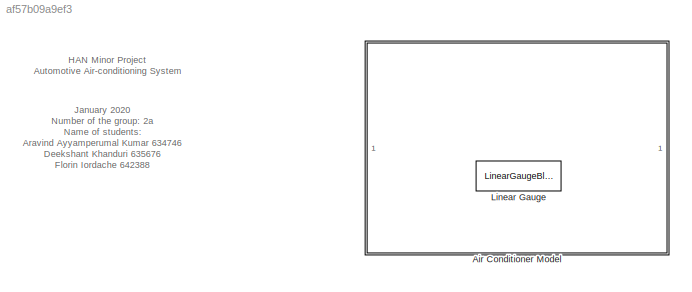
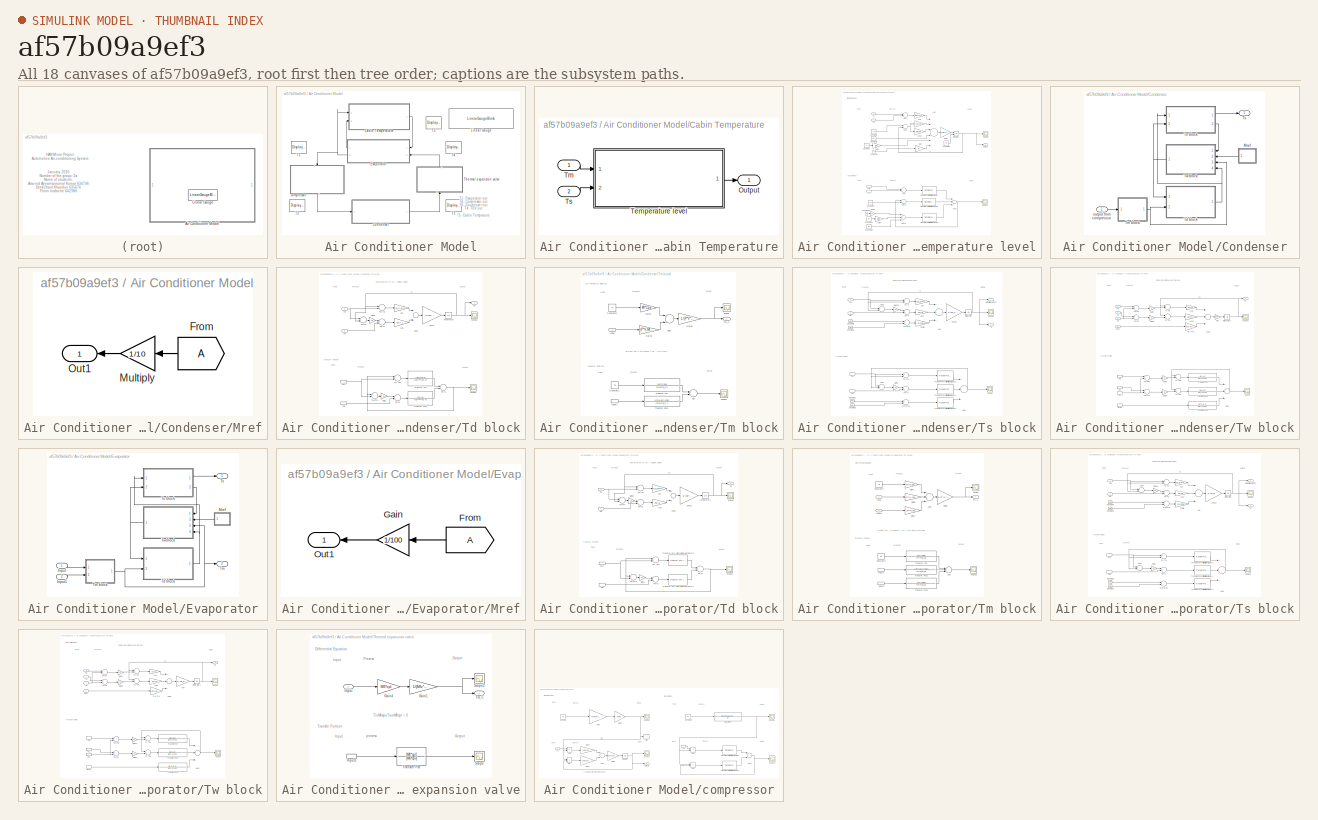
[diagram: thumbnail index - all 18 canvases of the model, root first then tree order]
MODEL slx_af57b09a9ef3
KIND model
CONFIG AbsTol = auto
CONFIG EnableMultiTasking = off
CONFIG FixedStep = auto
CONFIG MaxStep = auto
CONFIG MinStep = auto
CONFIG RelTol = 1e-3
CONFIG SampleTimeConstraint = Unconstrained
CONFIG Solver = VariableStepAuto
CONFIG SolverName = VariableStepAuto
CONFIG StartTime = 0.0
CONFIG StopTime = sim_time
BLOCK [SubSystem] Air Conditioner Model
  Ports = []
  RequestExecContextInheritance = off
BLOCK [SubSystem] Air Conditioner Model/Cabin Temperature
  Ports = [2, 1]
  RequestExecContextInheritance = off
BLOCK [Outport] Air Conditioner Model/Cabin Temperature/Output
  IconDisplay = Port number
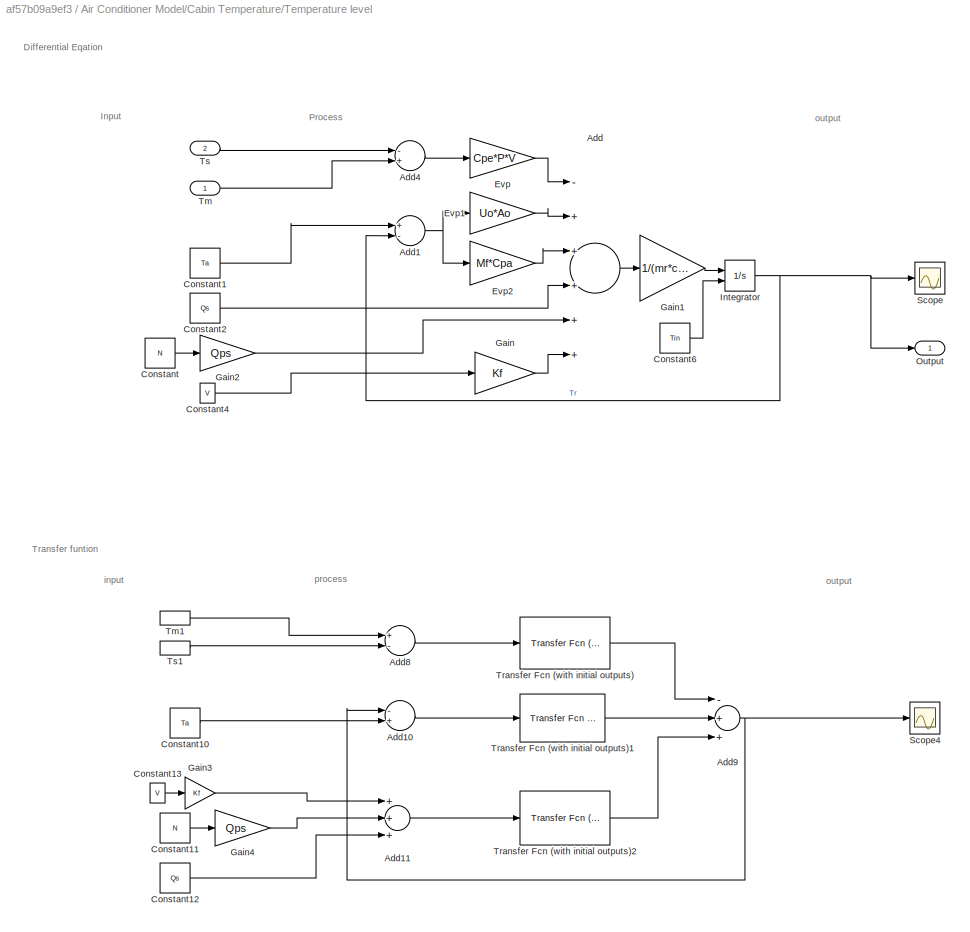
BLOCK [SubSystem] Air Conditioner Model/Cabin Temperature/Temperature level
  Ports = [2, 1]
  RequestExecContextInheritance = off
BLOCK [Sum] Air Conditioner Model/Cabin Temperature/Temperature level/Add
  InputSameDT = off
  Inputs = -+++++
  OutDataTypeStr = Inherit: Inherit via internal rule
  Ports = [6, 1]
  SaturateOnIntegerOverflow = off
BLOCK [Sum] Air Conditioner Model/Cabin Temperature/Temperature level/Add1
  InputSameDT = off
  Inputs = +-
  OutDataTypeStr = Inherit: Inherit via internal rule
  Ports = [2, 1]
  SaturateOnIntegerOverflow = off
BLOCK [Sum] Air Conditioner Model/Cabin Temperature/Temperature level/Add10
  InputSameDT = off
  Inputs = -+
  OutDataTypeStr = Inherit: Inherit via internal rule
  Ports = [2, 1]
  SaturateOnIntegerOverflow = off
BLOCK [Sum] Air Conditioner Model/Cabin Temperature/Temperature level/Add11
  InputSameDT = off
  Inputs = +++
  OutDataTypeStr = Inherit: Inherit via internal rule
  Ports = [3, 1]
  SaturateOnIntegerOverflow = off
BLOCK [Sum] Air Conditioner Model/Cabin Temperature/Temperature level/Add4
  InputSameDT = off
  Inputs = -+
  OutDataTypeStr = Inherit: Inherit via internal rule
  Ports = [2, 1]
  SaturateOnIntegerOverflow = off
BLOCK [Sum] Air Conditioner Model/Cabin Temperature/Temperature level/Add8
  InputSameDT = off
  Inputs = +-
  OutDataTypeStr = Inherit: Inherit via internal rule
  Ports = [2, 1]
  SaturateOnIntegerOverflow = off
BLOCK [Sum] Air Conditioner Model/Cabin Temperature/Temperature level/Add9
  InputSameDT = off
  Inputs = -++
  OutDataTypeStr = Inherit: Inherit via internal rule
  Ports = [3, 1]
  SaturateOnIntegerOverflow = off
BLOCK [Constant] Air Conditioner Model/Cabin Temperature/Temperature level/Constant
  Value = N
BLOCK [Constant] Air Conditioner Model/Cabin Temperature/Temperature level/Constant1
  Value = Ta
BLOCK [Constant] Air Conditioner Model/Cabin Temperature/Temperature level/Constant10
  Value = Ta
BLOCK [Constant] Air Conditioner Model/Cabin Temperature/Temperature level/Constant11
  Value = N
BLOCK [Constant] Air Conditioner Model/Cabin Temperature/Temperature level/Constant12
  Value = Qs
BLOCK [Constant] Air Conditioner Model/Cabin Temperature/Temperature level/Constant13
  Value = V
BLOCK [Constant] Air Conditioner Model/Cabin Temperature/Temperature level/Constant2
  Value = Qs
BLOCK [Constant] Air Conditioner Model/Cabin Temperature/Temperature level/Constant4
  Value = V
BLOCK [Constant] Air Conditioner Model/Cabin Temperature/Temperature level/Constant6
  Value = Tin
BLOCK [Gain] Air Conditioner Model/Cabin Temperature/Temperature level/Evp
  Gain = Cpe*P*V
  OutDataTypeStr = Inherit: Inherit via internal rule
  ParamDataTypeStr = Inherit: Inherit via internal rule
  SaturateOnIntegerOverflow = off
BLOCK [Gain] Air Conditioner Model/Cabin Temperature/Temperature level/Evp1
  Gain = Uo*Ao
  OutDataTypeStr = Inherit: Inherit via internal rule
  ParamDataTypeStr = Inherit: Inherit via internal rule
  SaturateOnIntegerOverflow = off
BLOCK [Gain] Air Conditioner Model/Cabin Temperature/Temperature level/Evp2
  Gain = Mf*Cpa
  OutDataTypeStr = Inherit: Inherit via internal rule
  ParamDataTypeStr = Inherit: Inherit via internal rule
  SaturateOnIntegerOverflow = off
BLOCK [Gain] Air Conditioner Model/Cabin Temperature/Temperature level/Gain
  Gain = Kf
  OutDataTypeStr = Inherit: Inherit via internal rule
  ParamDataTypeStr = Inherit: Inherit via internal rule
  SaturateOnIntegerOverflow = off
BLOCK [Gain] Air Conditioner Model/Cabin Temperature/Temperature level/Gain1
  Gain = 1/(mr*cpr)
  OutDataTypeStr = Inherit: Inherit via internal rule
  ParamDataTypeStr = Inherit: Inherit via internal rule
  SaturateOnIntegerOverflow = off
BLOCK [Gain] Air Conditioner Model/Cabin Temperature/Temperature level/Gain2
  Gain = Qps
  OutDataTypeStr = Inherit: Inherit via internal rule
  ParamDataTypeStr = Inherit: Inherit via internal rule
  SaturateOnIntegerOverflow = off
BLOCK [Gain] Air Conditioner Model/Cabin Temperature/Temperature level/Gain3
  Gain = Kf
  OutDataTypeStr = Inherit: Inherit via internal rule
  ParamDataTypeStr = Inherit: Inherit via internal rule
  SaturateOnIntegerOverflow = off
BLOCK [Gain] Air Conditioner Model/Cabin Temperature/Temperature level/Gain4
  Gain = Qps
  OutDataTypeStr = Inherit: Inherit via internal rule
  ParamDataTypeStr = Inherit: Inherit via internal rule
  SaturateOnIntegerOverflow = off
BLOCK [Integrator] Air Conditioner Model/Cabin Temperature/Temperature level/Integrator
  InitialConditionSource = external
  Ports = [2, 1]
BLOCK [Outport] Air Conditioner Model/Cabin Temperature/Temperature level/Output
  IconDisplay = Port number
BLOCK [Scope] Air Conditioner Model/Cabin Temperature/Temperature level/Scope
  Floating = off
  NumInputPorts = 1
  Ports = [1]
  ScopeSpecificationString = Simulink.scopes.TimeScopeBlockCfg('CurrentConfiguration', extmgr.ConfigurationSet(extmgr.Configuration('Core','General UI',true),extmgr.Configuration('Core','Source UI',true),extmgr.Configuration('Sources','WiredSimulink',true,'DataLoggingVariableName','T','DataLogging',true,'DataLoggingSaveFormat','Array'),extmgr.Configuration('Visuals','Time Domain',true,'SerializedDisplays',{struct('MinYLimReal...<+1435ch>
BLOCK [Scope] Air Conditioner Model/Cabin Temperature/Temperature level/Scope4
  Floating = off
  NumInputPorts = 1
  Ports = [1]
  ScopeSpecificationString = Simulink.scopes.TimeScopeBlockCfg('CurrentConfiguration', extmgr.ConfigurationSet(extmgr.Configuration('Core','General UI',true),extmgr.Configuration('Core','Source UI',true),extmgr.Configuration('Sources','WiredSimulink',true,'DataLoggingVariableName','T_tf1','DataLogging',true,'DataLoggingSaveFormat','Array'),extmgr.Configuration('Visuals','Time Domain',true,'SerializedDisplays',{struct('MinYLim...<+1443ch>
BLOCK [Inport] Air Conditioner Model/Cabin Temperature/Temperature level/Tm
  IconDisplay = Port number
BLOCK [InportShadow] Air Conditioner Model/Cabin Temperature/Temperature level/Tm1
  IconDisplay = Port number
BLOCK [Reference] Air Conditioner Model/Cabin Temperature/Temperature level/Transfer Fcn (with initial outputs)  REF=simulink_extras/Additional
Linear/Transfer Fcn
(with initial outputs)
  Ports = [1, 1]
  SourceBlock = simulink_extras/Additional\nLinear/Transfer Fcn\n(with initial outputs)
  SourceProductBaseCode = SL
  SourceProductName = Simulink
  SourceType = Transfer Function with Initial Outputs
BLOCK [Reference] Air Conditioner Model/Cabin Temperature/Temperature level/Transfer Fcn (with initial outputs)1  REF=simulink_extras/Additional
Linear/Transfer Fcn
(with initial outputs)
  Ports = [1, 1]
  SourceBlock = simulink_extras/Additional\nLinear/Transfer Fcn\n(with initial outputs)
  SourceProductBaseCode = SL
  SourceProductName = Simulink
  SourceType = Transfer Function with Initial Outputs
BLOCK [Reference] Air Conditioner Model/Cabin Temperature/Temperature level/Transfer Fcn (with initial outputs)2  REF=simulink_extras/Additional
Linear/Transfer Fcn
(with initial outputs)
  Ports = [1, 1]
  SourceBlock = simulink_extras/Additional\nLinear/Transfer Fcn\n(with initial outputs)
  SourceProductBaseCode = SL
  SourceProductName = Simulink
  SourceType = Transfer Function with Initial Outputs
BLOCK [Inport] Air Conditioner Model/Cabin Temperature/Temperature level/Ts
  IconDisplay = Port number
  Port = 2
BLOCK [InportShadow] Air Conditioner Model/Cabin Temperature/Temperature level/Ts1
  IconDisplay = Port number
  Port = 2
BLOCK [Inport] Air Conditioner Model/Cabin Temperature/Tm
  IconDisplay = Port number
BLOCK [Inport] Air Conditioner Model/Cabin Temperature/Ts
  IconDisplay = Port number
  Port = 2
BLOCK [SubSystem] Air Conditioner Model/Condenser
  Ports = [1, 1]
  RequestExecContextInheritance = off
BLOCK [SubSystem] Air Conditioner Model/Condenser/Mref
  Ports = [0, 1]
  RequestExecContextInheritance = off
BLOCK [From] Air Conditioner Model/Condenser/Mref/From
  TagVisibility = global
BLOCK [Gain] Air Conditioner Model/Condenser/Mref/Multiply
  Gain = 1/10
  OutDataTypeStr = Inherit: Inherit via internal rule
  ParamDataTypeStr = Inherit: Inherit via internal rule
  SaturateOnIntegerOverflow = off
BLOCK [Outport] Air Conditioner Model/Condenser/Mref/Out1
  IconDisplay = Port number
BLOCK [SubSystem] Air Conditioner Model/Condenser/Td block
  Ports = [2, 1]
  RequestExecContextInheritance = off
BLOCK [Gain] Air Conditioner Model/Condenser/Td block/A1a1
  Gain = a1*A1
  OutDataTypeStr = Inherit: Inherit via internal rule
  ParamDataTypeStr = Inherit: Inherit via internal rule
  SaturateOnIntegerOverflow = off
BLOCK [Sum] Air Conditioner Model/Condenser/Td block/Add3
  InputSameDT = off
  OutDataTypeStr = Inherit: Inherit via internal rule
  Ports = [2, 1]
  SaturateOnIntegerOverflow = off
BLOCK [Gain] Air Conditioner Model/Condenser/Td block/CPvh1
  Gain = 1/(cpr*P*Vh1)
  OutDataTypeStr = Inherit: Inherit via internal rule
  ParamDataTypeStr = Inherit: Inherit via internal rule
  SaturateOnIntegerOverflow = off
BLOCK [Gain] Air Conditioner Model/Condenser/Td block/Cpf
  Gain = Cp_C*P*V
  OutDataTypeStr = Inherit: Inherit via internal rule
  ParamDataTypeStr = Inherit: Inherit via internal rule
  SaturateOnIntegerOverflow = off
BLOCK [Gain] Air Conditioner Model/Condenser/Td block/Gain1
  Gain = 1/2
  OutDataTypeStr = Inherit: Inherit via internal rule
  ParamDataTypeStr = Inherit: Inherit via internal rule
  SaturateOnIntegerOverflow = off
BLOCK [Gain] Air Conditioner Model/Condenser/Td block/Gain8
  Gain = 1/2
  OutDataTypeStr = Inherit: Inherit via internal rule
  ParamDataTypeStr = Inherit: Inherit via internal rule
  SaturateOnIntegerOverflow = off
BLOCK [Integrator] Air Conditioner Model/Condenser/Td block/Integrator1
  Ports = [1, 1]
BLOCK [Scope] Air Conditioner Model/Condenser/Td block/Scope1
  Floating = off
  NumInputPorts = 1
  Ports = [1]
  ScopeSpecificationString = Simulink.scopes.TimeScopeBlockCfg('CurrentConfiguration', extmgr.ConfigurationSet(extmgr.Configuration('Core','General UI',true),extmgr.Configuration('Core','Source UI',true),extmgr.Configuration('Sources','WiredSimulink',true,'DataLoggingVariableName','ScopeData4'),extmgr.Configuration('Visuals','Time Domain',true,'SerializedDisplays',{struct('MinYLimReal','-5.22537','MaxYLimReal','47.02835','YLa...<+1368ch>
BLOCK [Scope] Air Conditioner Model/Condenser/Td block/Scope2
  Floating = off
  NumInputPorts = 1
  Ports = [1]
  ScopeSpecificationString = Simulink.scopes.TimeScopeBlockCfg('CurrentConfiguration', extmgr.ConfigurationSet(extmgr.Configuration('Core','General UI',true),extmgr.Configuration('Core','Source UI',true),extmgr.Configuration('Sources','WiredSimulink',true,'DataLoggingVariableName','ScopeData2'),extmgr.Configuration('Visuals','Time Domain',true,'SerializedDisplays',{struct('MinYLimReal','-5.22527','MaxYLimReal','47.02744','YLa...<+1365ch>
BLOCK [Outport] Air Conditioner Model/Condenser/Td block/Td
  IconDisplay = Port number
BLOCK [Sum] Air Conditioner Model/Condenser/Td block/Td+Tm
  InputSameDT = off
  OutDataTypeStr = Inherit: Inherit via internal rule
  Ports = [2, 1]
  SaturateOnIntegerOverflow = off
BLOCK [Sum] Air Conditioner Model/Condenser/Td block/Td+Tm1
  InputSameDT = off
  OutDataTypeStr = Inherit: Inherit via internal rule
  Ports = [2, 1]
  SaturateOnIntegerOverflow = off
BLOCK [Inport] Air Conditioner Model/Condenser/Td block/Tm
  IconDisplay = Port number
  Port = 2
BLOCK [Sum] Air Conditioner Model/Condenser/Td block/Tm-Td
  InputSameDT = off
  Inputs = -+
  OutDataTypeStr = Inherit: Inherit via internal rule
  Ports = [2, 1]
  SaturateOnIntegerOverflow = off
BLOCK [Sum] Air Conditioner Model/Condenser/Td block/Tm-Td1
  InputSameDT = off
  Inputs = -+
  OutDataTypeStr = Inherit: Inherit via internal rule
  Ports = [2, 1]
  SaturateOnIntegerOverflow = off
BLOCK [InportShadow] Air Conditioner Model/Condenser/Td block/Tm1
  IconDisplay = Port number
  Port = 2
BLOCK [TransferFcn] Air Conditioner Model/Condenser/Td block/Transfer Fcn
  Denominator = [cpr*P*Vh1 0]
  Numerator = [Cp_C*P*V]
BLOCK [TransferFcn] Air Conditioner Model/Condenser/Td block/Transfer Fcn1
  Denominator = [cpr*P*Vh1 0]
  Numerator = [a1*A1]
BLOCK [Inport] Air Conditioner Model/Condenser/Td block/Tw
  IconDisplay = Port number
BLOCK [Sum] Air Conditioner Model/Condenser/Td block/Tw-T1
  InputSameDT = off
  OutDataTypeStr = Inherit: Inherit via internal rule
  Ports = [2, 1]
  SaturateOnIntegerOverflow = off
BLOCK [Sum] Air Conditioner Model/Condenser/Td block/Tw-T2
  InputSameDT = off
  Inputs = -+
  OutDataTypeStr = Inherit: Inherit via internal rule
  Ports = [2, 1]
  SaturateOnIntegerOverflow = off
BLOCK [Sum] Air Conditioner Model/Condenser/Td block/Tw-T3
  InputSameDT = off
  Inputs = -+
  OutDataTypeStr = Inherit: Inherit via internal rule
  Ports = [2, 1]
  SaturateOnIntegerOverflow = off
BLOCK [InportShadow] Air Conditioner Model/Condenser/Td block/Tw1
  IconDisplay = Port number
BLOCK [SubSystem] Air Conditioner Model/Condenser/Tm block
  Ports = [1, 1]
  RequestExecContextInheritance = off
BLOCK [Sum] Air Conditioner Model/Condenser/Tm block/Add
  InputSameDT = off
  OutDataTypeStr = Inherit: Inherit via internal rule
  Ports = [2, 1]
  SaturateOnIntegerOverflow = off
BLOCK [Sum] Air Conditioner Model/Condenser/Tm block/Add1
  InputSameDT = off
  OutDataTypeStr = Inherit: Inherit via internal rule
  Ports = [2, 1]
  SaturateOnIntegerOverflow = off
BLOCK [Constant] Air Conditioner Model/Condenser/Tm block/Constant1
  Value = Ta
BLOCK [Constant] Air Conditioner Model/Condenser/Tm block/Constant2
  Value = Ta
BLOCK [Gain] Air Conditioner Model/Condenser/Tm block/Gain4
  Gain = Mf*Cpa
  OutDataTypeStr = Inherit: Inherit via internal rule
  ParamDataTypeStr = Inherit: Inherit via internal rule
  SaturateOnIntegerOverflow = off
BLOCK [Gain] Air Conditioner Model/Condenser/Tm block/Gain5
  Gain = (P*V-Mf)*cpr
  OutDataTypeStr = Inherit: Inherit via internal rule
  ParamDataTypeStr = Inherit: Inherit via internal rule
  SaturateOnIntegerOverflow = off
BLOCK [Gain] Air Conditioner Model/Condenser/Tm block/Gain6
  Gain = 1/(P*V*Cp_C)
  OutDataTypeStr = Inherit: Inherit via internal rule
  ParamDataTypeStr = Inherit: Inherit via internal rule
  SaturateOnIntegerOverflow = off
BLOCK [Inport] Air Conditioner Model/Condenser/Tm block/Input
  IconDisplay = Port number
BLOCK [InportShadow] Air Conditioner Model/Condenser/Tm block/Input1
  IconDisplay = Port number
BLOCK [Scope] Air Conditioner Model/Condenser/Tm block/Scope
  Floating = off
  NumInputPorts = 1
  Ports = [1]
  ScopeSpecificationString = Simulink.scopes.TimeScopeBlockCfg('CurrentConfiguration', extmgr.ConfigurationSet(extmgr.Configuration('Core','General UI',true),extmgr.Configuration('Core','Source UI',true),extmgr.Configuration('Sources','WiredSimulink',true,'DataLoggingVariableName','ScopeData1'),extmgr.Configuration('Visuals','Time Domain',true,'SerializedDisplays',{struct('MinYLimReal','22.75143','MaxYLimReal','58.37195','YLa...<+1370ch>
BLOCK [Scope] Air Conditioner Model/Condenser/Tm block/Scope1
  Floating = off
  NumInputPorts = 1
  Ports = [1]
  ScopeSpecificationString = Simulink.scopes.TimeScopeBlockCfg('CurrentConfiguration', extmgr.ConfigurationSet(extmgr.Configuration('Core','General UI',true),extmgr.Configuration('Core','Source UI',true),extmgr.Configuration('Sources','WiredSimulink',true,'DataLoggingVariableName','ScopeData3'),extmgr.Configuration('Visuals','Time Domain',true,'SerializedDisplays',{struct('MinYLimReal','22.75143','MaxYLimReal','58.37195','YLa...<+1368ch>
BLOCK [Outport] Air Conditioner Model/Condenser/Tm block/Tm_C
  IconDisplay = Port number
BLOCK [TransferFcn] Air Conditioner Model/Condenser/Tm block/Transfer Fcn
  Denominator = [P*V*Cp_C]
  Numerator = [Mf*Cpa]
BLOCK [TransferFcn] Air Conditioner Model/Condenser/Tm block/Transfer Fcn1
  Denominator = [P*V*Cp_C ]
  Numerator = [(P*V-Mf)*cpr]
BLOCK [Outport] Air Conditioner Model/Condenser/Ts
  IconDisplay = Port number
BLOCK [SubSystem] Air Conditioner Model/Condenser/Ts block
  Ports = [2, 2]
  RequestExecContextInheritance = off
BLOCK [Gain] Air Conditioner Model/Condenser/Ts block/A2a2
  Gain = a2*A2
  OutDataTypeStr = Inherit: Inherit via internal rule
  ParamDataTypeStr = Inherit: Inherit via internal rule
  SaturateOnIntegerOverflow = off
BLOCK [Sum] Air Conditioner Model/Condenser/Ts block/Add
  InputSameDT = off
  Inputs = +++
  OutDataTypeStr = Inherit: Inherit via internal rule
  Ports = [3, 1]
  SaturateOnIntegerOverflow = off
BLOCK [Sum] Air Conditioner Model/Condenser/Ts block/Add1
  InputSameDT = off
  Inputs = +++
  OutDataTypeStr = Inherit: Inherit via internal rule
  Ports = [3, 1]
  SaturateOnIntegerOverflow = off
BLOCK [Sum] Air Conditioner Model/Condenser/Ts block/Add2
  InputSameDT = off
  Inputs = +-
  OutDataTypeStr = Inherit: Inherit via internal rule
  Ports = [2, 1]
  SaturateOnIntegerOverflow = off
BLOCK [Sum] Air Conditioner Model/Condenser/Ts block/Add9
  InputSameDT = off
  Inputs = +-
  OutDataTypeStr = Inherit: Inherit via internal rule
  Ports = [2, 1]
  SaturateOnIntegerOverflow = off
BLOCK [Gain] Air Conditioner Model/Condenser/Ts block/CPVh2
  Gain = 1/(Cp_C*P*Vh2)
  OutDataTypeStr = Inherit: Inherit via internal rule
  ParamDataTypeStr = Inherit: Inherit via internal rule
  SaturateOnIntegerOverflow = off
BLOCK [Gain] Air Conditioner Model/Condenser/Ts block/CPf
  Gain = Cp_C*P*V
  OutDataTypeStr = Inherit: Inherit via internal rule
  ParamDataTypeStr = Inherit: Inherit via internal rule
  SaturateOnIntegerOverflow = off
BLOCK [Constant] Air Conditioner Model/Condenser/Ts block/Constant1
  Value = Wm
BLOCK [Constant] Air Conditioner Model/Condenser/Ts block/Constant2
  Value = Wg
BLOCK [Constant] Air Conditioner Model/Condenser/Ts block/Constant3
  Value = Wm
BLOCK [Constant] Air Conditioner Model/Condenser/Ts block/Constant4
  Value = Wg
BLOCK [Gain] Air Conditioner Model/Condenser/Ts block/Gain1
  Gain = 1/2
  OutDataTypeStr = Inherit: Inherit via internal rule
  ParamDataTypeStr = Inherit: Inherit via internal rule
  SaturateOnIntegerOverflow = off
BLOCK [Gain] Air Conditioner Model/Condenser/Ts block/Gain10
  Gain = 1/2
  OutDataTypeStr = Inherit: Inherit via internal rule
  ParamDataTypeStr = Inherit: Inherit via internal rule
  SaturateOnIntegerOverflow = off
BLOCK [Integrator] Air Conditioner Model/Condenser/Ts block/Integrator
  InitialCondition = 27
  Ports = [1, 1]
BLOCK [Outport] Air Conditioner Model/Condenser/Ts block/Output to cabin Ts
  IconDisplay = Port number
BLOCK [Gain] Air Conditioner Model/Condenser/Ts block/PFhfg
  Gain = P*V*hfg
  OutDataTypeStr = Inherit: Inherit via internal rule
  ParamDataTypeStr = Inherit: Inherit via internal rule
  SaturateOnIntegerOverflow = off
BLOCK [Scope] Air Conditioner Model/Condenser/Ts block/Scope
  Floating = off
  NumInputPorts = 1
  Ports = [1]
  ScopeSpecificationString = Simulink.scopes.TimeScopeBlockCfg('CurrentConfiguration', extmgr.ConfigurationSet(extmgr.Configuration('Core','General UI',true),extmgr.Configuration('Core','Source UI',true),extmgr.Configuration('Sources','WiredSimulink',true,'DataLoggingVariableName','Con_tf','DataLogging',true,'DataLoggingSaveFormat','Array'),extmgr.Configuration('Visuals','Time Domain',true,'SerializedDisplays',{struct('MinYLi...<+1416ch>
BLOCK [Scope] Air Conditioner Model/Condenser/Ts block/Scope1
  Floating = off
  NumInputPorts = 1
  Ports = [1]
  ScopeSpecificationString = Simulink.scopes.TimeScopeBlockCfg('CurrentConfiguration', extmgr.ConfigurationSet(extmgr.Configuration('Core','General UI',true),extmgr.Configuration('Core','Source UI',true),extmgr.Configuration('Sources','WiredSimulink',true,'DataLoggingVariableName','Con','DataLogging',true,'DataLoggingSaveFormat','Array'),extmgr.Configuration('Visuals','Time Domain',true,'SerializedDisplays',{struct('MinYLimRe...<+1440ch>
BLOCK [Sum] Air Conditioner Model/Condenser/Ts block/Td-Ts
  InputSameDT = off
  Inputs = +-
  OutDataTypeStr = Inherit: Inherit via internal rule
  Ports = [2, 1]
  SaturateOnIntegerOverflow = off
BLOCK [Sum] Air Conditioner Model/Condenser/Ts block/Td-Ts1
  InputSameDT = off
  Inputs = +-
  OutDataTypeStr = Inherit: Inherit via internal rule
  Ports = [2, 1]
  SaturateOnIntegerOverflow = off
BLOCK [Inport] Air Conditioner Model/Condenser/Ts block/Td1
  IconDisplay = Port number
BLOCK [InportShadow] Air Conditioner Model/Condenser/Ts block/Td2
  IconDisplay = Port number
BLOCK [Reference] Air Conditioner Model/Condenser/Ts block/Transfer Fcn (with initial outputs)1  REF=simulink_extras/Additional
Linear/Transfer Fcn
(with initial outputs)
  Ports = [1, 1]
  SourceBlock = simulink_extras/Additional\nLinear/Transfer Fcn\n(with initial outputs)
  SourceProductBaseCode = SL
  SourceProductName = Simulink
  SourceType = Transfer Function with Initial Outputs
BLOCK [Reference] Air Conditioner Model/Condenser/Ts block/Transfer Fcn (with initial outputs)2  REF=simulink_extras/Additional
Linear/Transfer Fcn
(with initial outputs)
  Ports = [1, 1]
  SourceBlock = simulink_extras/Additional\nLinear/Transfer Fcn\n(with initial outputs)
  SourceProductBaseCode = SL
  SourceProductName = Simulink
  SourceType = Transfer Function with Initial Outputs
BLOCK [Reference] Air Conditioner Model/Condenser/Ts block/Transfer Fcn (with initial outputs)3  REF=simulink_extras/Additional
Linear/Transfer Fcn
(with initial outputs)
  Ports = [1, 1]
  SourceBlock = simulink_extras/Additional\nLinear/Transfer Fcn\n(with initial outputs)
  SourceProductBaseCode = SL
  SourceProductName = Simulink
  SourceType = Transfer Function with Initial Outputs
BLOCK [Outport] Air Conditioner Model/Condenser/Ts block/Ts
  IconDisplay = Port number
  Port = 2
BLOCK [Inport] Air Conditioner Model/Condenser/Ts block/Tw
  IconDisplay = Port number
  Port = 2
BLOCK [Sum] Air Conditioner Model/Condenser/Ts block/Tw-T1
  InputSameDT = off
  Inputs = -+
  OutDataTypeStr = Inherit: Inherit via internal rule
  Ports = [2, 1]
  SaturateOnIntegerOverflow = off
BLOCK [Sum] Air Conditioner Model/Condenser/Ts block/Tw-T3
  InputSameDT = off
  Inputs = -+
  OutDataTypeStr = Inherit: Inherit via internal rule
  Ports = [2, 1]
  SaturateOnIntegerOverflow = off
BLOCK [InportShadow] Air Conditioner Model/Condenser/Ts block/Tw1
  IconDisplay = Port number
  Port = 2
BLOCK [Sum] Air Conditioner Model/Condenser/Ts block/Wm-Wg
  InputSameDT = off
  Inputs = +-
  OutDataTypeStr = Inherit: Inherit via internal rule
  Ports = [2, 1]
  SaturateOnIntegerOverflow = off
BLOCK [Sum] Air Conditioner Model/Condenser/Ts block/Wm-Wg1
  InputSameDT = off
  Inputs = +-
  OutDataTypeStr = Inherit: Inherit via internal rule
  Ports = [2, 1]
  SaturateOnIntegerOverflow = off
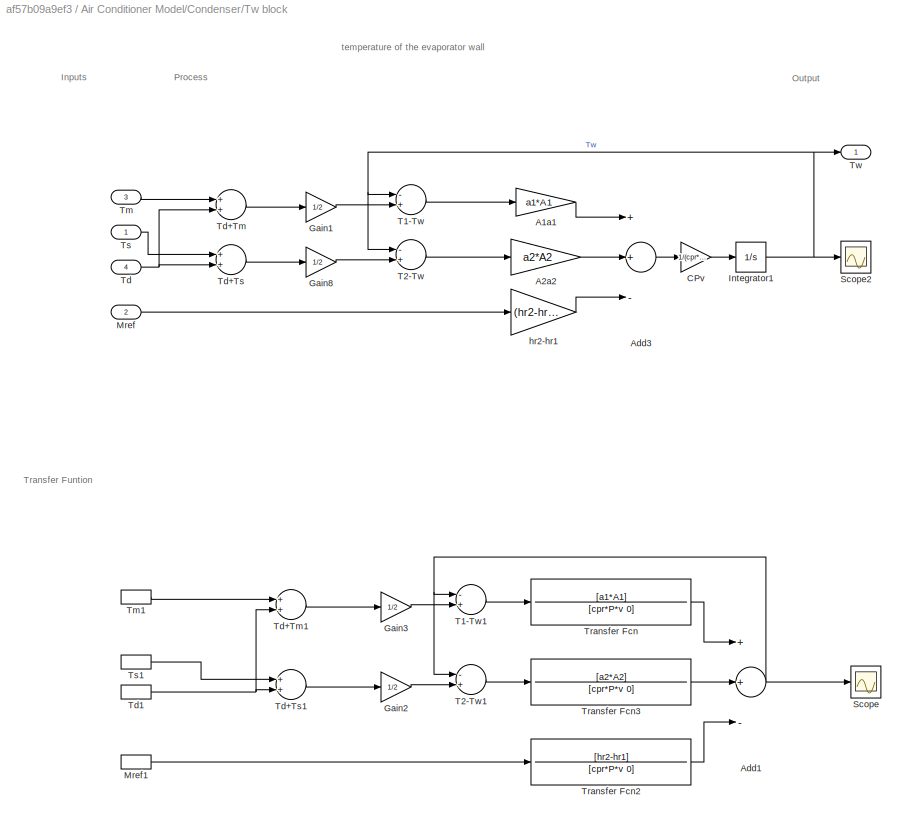
BLOCK [SubSystem] Air Conditioner Model/Condenser/Tw block
  Ports = [4, 1]
  RequestExecContextInheritance = off
BLOCK [Gain] Air Conditioner Model/Condenser/Tw block/A1a1
  Gain = a1*A1
  OutDataTypeStr = Inherit: Inherit via internal rule
  ParamDataTypeStr = Inherit: Inherit via internal rule
  SaturateOnIntegerOverflow = off
BLOCK [Gain] Air Conditioner Model/Condenser/Tw block/A2a2
  Gain = a2*A2
  OutDataTypeStr = Inherit: Inherit via internal rule
  ParamDataTypeStr = Inherit: Inherit via internal rule
  SaturateOnIntegerOverflow = off
BLOCK [Sum] Air Conditioner Model/Condenser/Tw block/Add1
  InputSameDT = off
  Inputs = ++-
  OutDataTypeStr = Inherit: Inherit via internal rule
  Ports = [3, 1]
  SaturateOnIntegerOverflow = off
BLOCK [Sum] Air Conditioner Model/Condenser/Tw block/Add3
  InputSameDT = off
  Inputs = ++-
  OutDataTypeStr = Inherit: Inherit via internal rule
  Ports = [3, 1]
  SaturateOnIntegerOverflow = off
BLOCK [Gain] Air Conditioner Model/Condenser/Tw block/CPv
  Gain = 1/(cpr*P*v)
  OutDataTypeStr = Inherit: Inherit via internal rule
  ParamDataTypeStr = Inherit: Inherit via internal rule
  SaturateOnIntegerOverflow = off
BLOCK [Gain] Air Conditioner Model/Condenser/Tw block/Gain1
  Gain = 1/2
  OutDataTypeStr = Inherit: Inherit via internal rule
  ParamDataTypeStr = Inherit: Inherit via internal rule
  SaturateOnIntegerOverflow = off
BLOCK [Gain] Air Conditioner Model/Condenser/Tw block/Gain2
  Gain = 1/2
  OutDataTypeStr = Inherit: Inherit via internal rule
  ParamDataTypeStr = Inherit: Inherit via internal rule
  SaturateOnIntegerOverflow = off
BLOCK [Gain] Air Conditioner Model/Condenser/Tw block/Gain3
  Gain = 1/2
  OutDataTypeStr = Inherit: Inherit via internal rule
  ParamDataTypeStr = Inherit: Inherit via internal rule
  SaturateOnIntegerOverflow = off
BLOCK [Gain] Air Conditioner Model/Condenser/Tw block/Gain8
  Gain = 1/2
  OutDataTypeStr = Inherit: Inherit via internal rule
  ParamDataTypeStr = Inherit: Inherit via internal rule
  SaturateOnIntegerOverflow = off
BLOCK [Integrator] Air Conditioner Model/Condenser/Tw block/Integrator1
  InitialCondition = 28
  Ports = [1, 1]
BLOCK [Inport] Air Conditioner Model/Condenser/Tw block/Mref
  IconDisplay = Port number
  Port = 2
BLOCK [InportShadow] Air Conditioner Model/Condenser/Tw block/Mref1
  IconDisplay = Port number
  Port = 2
BLOCK [Scope] Air Conditioner Model/Condenser/Tw block/Scope
  Floating = off
  NumInputPorts = 1
  Ports = [1]
  ScopeSpecificationString = Simulink.scopes.TimeScopeBlockCfg('CurrentConfiguration', extmgr.ConfigurationSet(extmgr.Configuration('Core','General UI',true),extmgr.Configuration('Core','Source UI',true),extmgr.Configuration('Sources','WiredSimulink',true,'DataLoggingVariableName','ScopeData9'),extmgr.Configuration('Visuals','Time Domain',true),extmgr.Configuration('Tools','Plot Navigation',true),extmgr.Configuration('Tools',...<+40ch>
BLOCK [Scope] Air Conditioner Model/Condenser/Tw block/Scope2
  Floating = off
  NumInputPorts = 1
  Ports = [1]
  ScopeSpecificationString = Simulink.scopes.TimeScopeBlockCfg('CurrentConfiguration', extmgr.ConfigurationSet(extmgr.Configuration('Core','General UI',true),extmgr.Configuration('Core','Source UI',true),extmgr.Configuration('Sources','WiredSimulink',true,'DataLoggingVariableName','ScopeData2'),extmgr.Configuration('Visuals','Time Domain',true,'SerializedDisplays',{struct('MinYLimReal','23.56767','MaxYLimReal','58.62035','YLa...<+1397ch>
BLOCK [Sum] Air Conditioner Model/Condenser/Tw block/T1-Tw
  InputSameDT = off
  Inputs = -+
  OutDataTypeStr = Inherit: Inherit via internal rule
  Ports = [2, 1]
  SaturateOnIntegerOverflow = off
BLOCK [Sum] Air Conditioner Model/Condenser/Tw block/T1-Tw1
  InputSameDT = off
  Inputs = -+
  OutDataTypeStr = Inherit: Inherit via internal rule
  Ports = [2, 1]
  SaturateOnIntegerOverflow = off
BLOCK [Sum] Air Conditioner Model/Condenser/Tw block/T2-Tw
  InputSameDT = off
  Inputs = -+
  OutDataTypeStr = Inherit: Inherit via internal rule
  Ports = [2, 1]
  SaturateOnIntegerOverflow = off
BLOCK [Sum] Air Conditioner Model/Condenser/Tw block/T2-Tw1
  InputSameDT = off
  Inputs = -+
  OutDataTypeStr = Inherit: Inherit via internal rule
  Ports = [2, 1]
  SaturateOnIntegerOverflow = off
BLOCK [Inport] Air Conditioner Model/Condenser/Tw block/Td
  IconDisplay = Port number
  Port = 4
BLOCK [Sum] Air Conditioner Model/Condenser/Tw block/Td+Tm
  InputSameDT = off
  OutDataTypeStr = Inherit: Inherit via internal rule
  Ports = [2, 1]
  SaturateOnIntegerOverflow = off
BLOCK [Sum] Air Conditioner Model/Condenser/Tw block/Td+Tm1
  InputSameDT = off
  OutDataTypeStr = Inherit: Inherit via internal rule
  Ports = [2, 1]
  SaturateOnIntegerOverflow = off
BLOCK [Sum] Air Conditioner Model/Condenser/Tw block/Td+Ts
  InputSameDT = off
  OutDataTypeStr = Inherit: Inherit via internal rule
  Ports = [2, 1]
  SaturateOnIntegerOverflow = off
BLOCK [Sum] Air Conditioner Model/Condenser/Tw block/Td+Ts1
  InputSameDT = off
  OutDataTypeStr = Inherit: Inherit via internal rule
  Ports = [2, 1]
  SaturateOnIntegerOverflow = off
BLOCK [InportShadow] Air Conditioner Model/Condenser/Tw block/Td1
  IconDisplay = Port number
  Port = 4
BLOCK [Inport] Air Conditioner Model/Condenser/Tw block/Tm
  IconDisplay = Port number
  Port = 3
BLOCK [InportShadow] Air Conditioner Model/Condenser/Tw block/Tm1
  IconDisplay = Port number
  Port = 3
BLOCK [TransferFcn] Air Conditioner Model/Condenser/Tw block/Transfer Fcn
  Denominator = [cpr*P*v 0]
  Numerator = [a1*A1]
BLOCK [TransferFcn] Air Conditioner Model/Condenser/Tw block/Transfer Fcn2
  Denominator = [cpr*P*v 0]
  Numerator = [hr2-hr1]
BLOCK [TransferFcn] Air Conditioner Model/Condenser/Tw block/Transfer Fcn3
  Denominator = [cpr*P*v 0]
  Numerator = [a2*A2]
BLOCK [Inport] Air Conditioner Model/Condenser/Tw block/Ts
  IconDisplay = Port number
BLOCK [InportShadow] Air Conditioner Model/Condenser/Tw block/Ts1
  IconDisplay = Port number
BLOCK [Outport] Air Conditioner Model/Condenser/Tw block/Tw
  IconDisplay = Port number
BLOCK [Gain] Air Conditioner Model/Condenser/Tw block/hr2-hr1
  Gain = (hr2-hr1)
  OutDataTypeStr = Inherit: Inherit via internal rule
  ParamDataTypeStr = Inherit: Inherit via internal rule
  SaturateOnIntegerOverflow = off
BLOCK [Inport] Air Conditioner Model/Condenser/output from compressor
  IconDisplay = Port number
BLOCK [SubSystem] Air Conditioner Model/Evaporator
  Ports = [2, 2]
  RequestExecContextInheritance = off
BLOCK [Inport] Air Conditioner Model/Evaporator/Input
  IconDisplay = Port number
BLOCK [Inport] Air Conditioner Model/Evaporator/Input1
  IconDisplay = Port number
  Port = 2
BLOCK [SubSystem] Air Conditioner Model/Evaporator/Mref
  Ports = [0, 1]
  RequestExecContextInheritance = off
BLOCK [From] Air Conditioner Model/Evaporator/Mref/From
  TagVisibility = global
BLOCK [Gain] Air Conditioner Model/Evaporator/Mref/Gain
  Gain = 1/100
  OutDataTypeStr = Inherit: Inherit via internal rule
  ParamDataTypeStr = Inherit: Inherit via internal rule
  SaturateOnIntegerOverflow = off
BLOCK [Outport] Air Conditioner Model/Evaporator/Mref/Out1
  IconDisplay = Port number
BLOCK [SubSystem] Air Conditioner Model/Evaporator/Td block
  Ports = [2, 1]
  RequestExecContextInheritance = off
BLOCK [Gain] Air Conditioner Model/Evaporator/Td block/A1a1
  Gain = a1*A1
  OutDataTypeStr = Inherit: Inherit via internal rule
  ParamDataTypeStr = Inherit: Inherit via internal rule
  SaturateOnIntegerOverflow = off
BLOCK [Sum] Air Conditioner Model/Evaporator/Td block/Add3
  InputSameDT = off
  OutDataTypeStr = Inherit: Inherit via internal rule
  Ports = [2, 1]
  SaturateOnIntegerOverflow = off
BLOCK [Gain] Air Conditioner Model/Evaporator/Td block/CPvh1
  Gain = 1/(cpr*P*Vh1)
  OutDataTypeStr = Inherit: Inherit via internal rule
  ParamDataTypeStr = Inherit: Inherit via internal rule
  SaturateOnIntegerOverflow = off
BLOCK [Gain] Air Conditioner Model/Evaporator/Td block/Cpf
  Gain = Cp_E*P*V
  OutDataTypeStr = Inherit: Inherit via internal rule
  ParamDataTypeStr = Inherit: Inherit via internal rule
  SaturateOnIntegerOverflow = off
BLOCK [Gain] Air Conditioner Model/Evaporator/Td block/Gain1
  Gain = 1/2
  OutDataTypeStr = Inherit: Inherit via internal rule
  ParamDataTypeStr = Inherit: Inherit via internal rule
  SaturateOnIntegerOverflow = off
BLOCK [Gain] Air Conditioner Model/Evaporator/Td block/Gain8
  Gain = 1/2
  OutDataTypeStr = Inherit: Inherit via internal rule
  ParamDataTypeStr = Inherit: Inherit via internal rule
  SaturateOnIntegerOverflow = off
BLOCK [Integrator] Air Conditioner Model/Evaporator/Td block/Integrator1
  InitialCondition = 27
  Ports = [1, 1]
BLOCK [Scope] Air Conditioner Model/Evaporator/Td block/Scope1
  Floating = off
  NumInputPorts = 1
  Ports = [1]
  ScopeSpecificationString = Simulink.scopes.TimeScopeBlockCfg('CurrentConfiguration', extmgr.ConfigurationSet(extmgr.Configuration('Core','General UI',true),extmgr.Configuration('Core','Source UI',true),extmgr.Configuration('Sources','WiredSimulink',true,'DataLoggingVariableName','ScopeData5'),extmgr.Configuration('Visuals','Time Domain',true,'SerializedDisplays',{struct('MinYLimReal','14.33501','MaxYLimReal','29.2185','YLab...<+1366ch>
BLOCK [Scope] Air Conditioner Model/Evaporator/Td block/Scope2
  Floating = off
  NumInputPorts = 1
  Ports = [1]
  ScopeSpecificationString = Simulink.scopes.TimeScopeBlockCfg('CurrentConfiguration', extmgr.ConfigurationSet(extmgr.Configuration('Core','General UI',true),extmgr.Configuration('Core','Source UI',true),extmgr.Configuration('Sources','WiredSimulink',true,'DataLoggingVariableName','ScopeData2'),extmgr.Configuration('Visuals','Time Domain',true,'SerializedDisplays',{struct('MinYLimReal','13.71145','MaxYLimReal','29.29011','YLa...<+1367ch>
BLOCK [Outport] Air Conditioner Model/Evaporator/Td block/Td
  IconDisplay = Port number
BLOCK [Sum] Air Conditioner Model/Evaporator/Td block/Td+Tm
  InputSameDT = off
  OutDataTypeStr = Inherit: Inherit via internal rule
  Ports = [2, 1]
  SaturateOnIntegerOverflow = off
BLOCK [Sum] Air Conditioner Model/Evaporator/Td block/Td+Tm1
  InputSameDT = off
  OutDataTypeStr = Inherit: Inherit via internal rule
  Ports = [2, 1]
  SaturateOnIntegerOverflow = off
BLOCK [Inport] Air Conditioner Model/Evaporator/Td block/Tm
  IconDisplay = Port number
  Port = 2
BLOCK [Sum] Air Conditioner Model/Evaporator/Td block/Tm-Td
  InputSameDT = off
  Inputs = -+
  OutDataTypeStr = Inherit: Inherit via internal rule
  Ports = [2, 1]
  SaturateOnIntegerOverflow = off
BLOCK [Sum] Air Conditioner Model/Evaporator/Td block/Tm-Td1
  InputSameDT = off
  Inputs = -+
  OutDataTypeStr = Inherit: Inherit via internal rule
  Ports = [2, 1]
  SaturateOnIntegerOverflow = off
BLOCK [InportShadow] Air Conditioner Model/Evaporator/Td block/Tm1
  IconDisplay = Port number
  Port = 2
BLOCK [Reference] Air Conditioner Model/Evaporator/Td block/Transfer Fcn (with initial outputs)1  REF=simulink_extras/Additional
Linear/Transfer Fcn
(with initial outputs)
  Ports = [1, 1]
  SourceBlock = simulink_extras/Additional\nLinear/Transfer Fcn\n(with initial outputs)
  SourceProductBaseCode = SL
  SourceProductName = Simulink
  SourceType = Transfer Function with Initial Outputs
BLOCK [Reference] Air Conditioner Model/Evaporator/Td block/Transfer Fcn (with initial outputs)2  REF=simulink_extras/Additional
Linear/Transfer Fcn
(with initial outputs)
  Ports = [1, 1]
  SourceBlock = simulink_extras/Additional\nLinear/Transfer Fcn\n(with initial outputs)
  SourceProductBaseCode = SL
  SourceProductName = Simulink
  SourceType = Transfer Function with Initial Outputs
BLOCK [Inport] Air Conditioner Model/Evaporator/Td block/Tw
  IconDisplay = Port number
BLOCK [Sum] Air Conditioner Model/Evaporator/Td block/Tw-T1
  InputSameDT = off
  OutDataTypeStr = Inherit: Inherit via internal rule
  Ports = [2, 1]
  SaturateOnIntegerOverflow = off
BLOCK [Sum] Air Conditioner Model/Evaporator/Td block/Tw-T2
  InputSameDT = off
  Inputs = -+
  OutDataTypeStr = Inherit: Inherit via internal rule
  Ports = [2, 1]
  SaturateOnIntegerOverflow = off
BLOCK [Sum] Air Conditioner Model/Evaporator/Td block/Tw-T3
  InputSameDT = off
  Inputs = -+
  OutDataTypeStr = Inherit: Inherit via internal rule
  Ports = [2, 1]
  SaturateOnIntegerOverflow = off
BLOCK [InportShadow] Air Conditioner Model/Evaporator/Td block/Tw1
  IconDisplay = Port number
BLOCK [Outport] Air Conditioner Model/Evaporator/Tm
  IconDisplay = Port number
  Port = 2
BLOCK [SubSystem] Air Conditioner Model/Evaporator/Tm block
  Ports = [2, 1]
  RequestExecContextInheritance = off
BLOCK [Sum] Air Conditioner Model/Evaporator/Tm block/Add
  InputSameDT = off
  Inputs = +++
  OutDataTypeStr = Inherit: Inherit via internal rule
  Ports = [3, 1]
  SaturateOnIntegerOverflow = off
BLOCK [Sum] Air Conditioner Model/Evaporator/Tm block/Add1
  InputSameDT = off
  Inputs = +++
  OutDataTypeStr = Inherit: Inherit via internal rule
  Ports = [3, 1]
  SaturateOnIntegerOverflow = off
BLOCK [Constant] Air Conditioner Model/Evaporator/Tm block/Constant1
  Value = Ta
BLOCK [Constant] Air Conditioner Model/Evaporator/Tm block/Constant2
  Value = Ta
BLOCK [Gain] Air Conditioner Model/Evaporator/Tm block/Gain1
  Gain = Mf*Cpa
  OutDataTypeStr = Inherit: Inherit via internal rule
  ParamDataTypeStr = Inherit: Inherit via internal rule
  SaturateOnIntegerOverflow = off
BLOCK [Gain] Air Conditioner Model/Evaporator/Tm block/Gain4
  Gain = Mf*Cpa
  OutDataTypeStr = Inherit: Inherit via internal rule
  ParamDataTypeStr = Inherit: Inherit via internal rule
  SaturateOnIntegerOverflow = off
BLOCK [Gain] Air Conditioner Model/Evaporator/Tm block/Gain5
  Gain = (P*V-Mf)*cpr
  OutDataTypeStr = Inherit: Inherit via internal rule
  ParamDataTypeStr = Inherit: Inherit via internal rule
  SaturateOnIntegerOverflow = off
BLOCK [Gain] Air Conditioner Model/Evaporator/Tm block/Gain6
  Gain = 1/(P*V*Cp_E)
  OutDataTypeStr = Inherit: Inherit via internal rule
  ParamDataTypeStr = Inherit: Inherit via internal rule
  SaturateOnIntegerOverflow = off
BLOCK [Inport] Air Conditioner Model/Evaporator/Tm block/Input
  IconDisplay = Port number
BLOCK [Inport] Air Conditioner Model/Evaporator/Tm block/Input1
  IconDisplay = Port number
  Port = 2
BLOCK [InportShadow] Air Conditioner Model/Evaporator/Tm block/Input2
  IconDisplay = Port number
BLOCK [InportShadow] Air Conditioner Model/Evaporator/Tm block/Input3
  IconDisplay = Port number
  Port = 2
BLOCK [Scope] Air Conditioner Model/Evaporator/Tm block/Scope
  Floating = off
  NumInputPorts = 1
  Ports = [1]
  ScopeSpecificationString = Simulink.scopes.TimeScopeBlockCfg('CurrentConfiguration', extmgr.ConfigurationSet(extmgr.Configuration('Core','General UI',true),extmgr.Configuration('Core','Source UI',true),extmgr.Configuration('Sources','WiredSimulink',true,'DataLoggingVariableName','ScopeData1'),extmgr.Configuration('Visuals','Time Domain',true,'SerializedDisplays',{struct('MinYLimReal','19.71422','MaxYLimReal','25.13528','YLa...<+1370ch>
BLOCK [Scope] Air Conditioner Model/Evaporator/Tm block/Scope1
  Floating = off
  NumInputPorts = 1
  Ports = [1]
  ScopeSpecificationString = Simulink.scopes.TimeScopeBlockCfg('CurrentConfiguration', extmgr.ConfigurationSet(extmgr.Configuration('Core','General UI',true),extmgr.Configuration('Core','Source UI',true),extmgr.Configuration('Sources','WiredSimulink',true,'DataLoggingVariableName','ScopeData6'),extmgr.Configuration('Visuals','Time Domain',true,'SerializedDisplays',{struct('MinYLimReal','22.75116','MaxYLimReal','58.37443','YLa...<+1368ch>
BLOCK [Outport] Air Conditioner Model/Evaporator/Tm block/Tm_C
  IconDisplay = Port number
BLOCK [TransferFcn] Air Conditioner Model/Evaporator/Tm block/Transfer Fcn
  Denominator = [P*V*Cp_E]
  Numerator = [Mf*Cpa]
BLOCK [TransferFcn] Air Conditioner Model/Evaporator/Tm block/Transfer Fcn1
  Denominator = [P*V*Cp_E]
  Numerator = [(P*V-Mf)*cpr]
BLOCK [TransferFcn] Air Conditioner Model/Evaporator/Tm block/Transfer Fcn2
  Denominator = [P*V*Cp_E]
  Numerator = [Mf*Cpa]
BLOCK [Outport] Air Conditioner Model/Evaporator/Ts
  IconDisplay = Port number
BLOCK [SubSystem] Air Conditioner Model/Evaporator/Ts block
  Ports = [2, 2]
  RequestExecContextInheritance = off
BLOCK [Gain] Air Conditioner Model/Evaporator/Ts block/A2a2
  Gain = a2*A2
  OutDataTypeStr = Inherit: Inherit via internal rule
  ParamDataTypeStr = Inherit: Inherit via internal rule
  SaturateOnIntegerOverflow = off
BLOCK [Sum] Air Conditioner Model/Evaporator/Ts block/Add
  InputSameDT = off
  Inputs = +++
  OutDataTypeStr = Inherit: Inherit via internal rule
  Ports = [3, 1]
  SaturateOnIntegerOverflow = off
BLOCK [Sum] Air Conditioner Model/Evaporator/Ts block/Add1
  InputSameDT = off
  Inputs = +++
  OutDataTypeStr = Inherit: Inherit via internal rule
  Ports = [3, 1]
  SaturateOnIntegerOverflow = off
BLOCK [Sum] Air Conditioner Model/Evaporator/Ts block/Add2
  InputSameDT = off
  Inputs = +-
  OutDataTypeStr = Inherit: Inherit via internal rule
  Ports = [2, 1]
  SaturateOnIntegerOverflow = off
BLOCK [Sum] Air Conditioner Model/Evaporator/Ts block/Add9
  InputSameDT = off
  Inputs = +-
  OutDataTypeStr = Inherit: Inherit via internal rule
  Ports = [2, 1]
  SaturateOnIntegerOverflow = off
BLOCK [Gain] Air Conditioner Model/Evaporator/Ts block/CPVh2
  Gain = 1/(Cp_E*P*Vh2)
  OutDataTypeStr = Inherit: Inherit via internal rule
  ParamDataTypeStr = Inherit: Inherit via internal rule
  SaturateOnIntegerOverflow = off
BLOCK [Gain] Air Conditioner Model/Evaporator/Ts block/CPf
  Gain = Cp_E*P*V
  OutDataTypeStr = Inherit: Inherit via internal rule
  ParamDataTypeStr = Inherit: Inherit via internal rule
  SaturateOnIntegerOverflow = off
BLOCK [Constant] Air Conditioner Model/Evaporator/Ts block/Constant1
  Value = Wg
BLOCK [Constant] Air Conditioner Model/Evaporator/Ts block/Constant2
  Value = Wm
BLOCK [Constant] Air Conditioner Model/Evaporator/Ts block/Constant3
  Value = Wm
BLOCK [Constant] Air Conditioner Model/Evaporator/Ts block/Constant4
  Value = Wg
BLOCK [Gain] Air Conditioner Model/Evaporator/Ts block/Gain1
  Gain = 1/2
  OutDataTypeStr = Inherit: Inherit via internal rule
  ParamDataTypeStr = Inherit: Inherit via internal rule
  SaturateOnIntegerOverflow = off
BLOCK [Gain] Air Conditioner Model/Evaporator/Ts block/Gain10
  Gain = 1/2
  OutDataTypeStr = Inherit: Inherit via internal rule
  ParamDataTypeStr = Inherit: Inherit via internal rule
  SaturateOnIntegerOverflow = off
BLOCK [Integrator] Air Conditioner Model/Evaporator/Ts block/Integrator
  InitialCondition = 27
  Ports = [1, 1]
BLOCK [Outport] Air Conditioner Model/Evaporator/Ts block/Output to cabin Ts
  IconDisplay = Port number
BLOCK [Gain] Air Conditioner Model/Evaporator/Ts block/PFhfg
  Gain = P*V*hfg
  OutDataTypeStr = Inherit: Inherit via internal rule
  ParamDataTypeStr = Inherit: Inherit via internal rule
  SaturateOnIntegerOverflow = off
BLOCK [Scope] Air Conditioner Model/Evaporator/Ts block/Scope
  Floating = off
  NumInputPorts = 1
  Ports = [1]
  ScopeSpecificationString = Simulink.scopes.TimeScopeBlockCfg('CurrentConfiguration', extmgr.ConfigurationSet(extmgr.Configuration('Core','General UI',true),extmgr.Configuration('Core','Source UI',true),extmgr.Configuration('Sources','WiredSimulink',true,'DataLoggingVariableName','Evp_tf','DataLogging',true,'DataLoggingSaveFormat','Array'),extmgr.Configuration('Visuals','Time Domain',true,'SerializedDisplays',{struct('MinYLi...<+2099ch>
BLOCK [Scope] Air Conditioner Model/Evaporator/Ts block/Scope1
  Floating = off
  NumInputPorts = 1
  Ports = [1]
  ScopeSpecificationString = Simulink.scopes.TimeScopeBlockCfg('CurrentConfiguration', extmgr.ConfigurationSet(extmgr.Configuration('Core','General UI',true),extmgr.Configuration('Core','Source UI',true),extmgr.Configuration('Sources','WiredSimulink',true,'DataLoggingVariableName','Evp','DataLogging',true,'DataLoggingSaveFormat','Array'),extmgr.Configuration('Visuals','Time Domain',true,'SerializedDisplays',{struct('MinYLimRe...<+1438ch>
BLOCK [Sum] Air Conditioner Model/Evaporator/Ts block/Td-Ts
  InputSameDT = off
  Inputs = +-
  OutDataTypeStr = Inherit: Inherit via internal rule
  Ports = [2, 1]
  SaturateOnIntegerOverflow = off
BLOCK [Sum] Air Conditioner Model/Evaporator/Ts block/Td-Ts1
  InputSameDT = off
  Inputs = +-
  OutDataTypeStr = Inherit: Inherit via internal rule
  Ports = [2, 1]
  SaturateOnIntegerOverflow = off
BLOCK [Inport] Air Conditioner Model/Evaporator/Ts block/Td1
  IconDisplay = Port number
BLOCK [InportShadow] Air Conditioner Model/Evaporator/Ts block/Td2
  IconDisplay = Port number
BLOCK [Reference] Air Conditioner Model/Evaporator/Ts block/Transfer Fcn (with initial outputs)1  REF=simulink_extras/Additional
Linear/Transfer Fcn
(with initial outputs)
  Ports = [1, 1]
  SourceBlock = simulink_extras/Additional\nLinear/Transfer Fcn\n(with initial outputs)
  SourceProductBaseCode = SL
  SourceProductName = Simulink
  SourceType = Transfer Function with Initial Outputs
BLOCK [Reference] Air Conditioner Model/Evaporator/Ts block/Transfer Fcn (with initial outputs)2  REF=simulink_extras/Additional
Linear/Transfer Fcn
(with initial outputs)
  Ports = [1, 1]
  SourceBlock = simulink_extras/Additional\nLinear/Transfer Fcn\n(with initial outputs)
  SourceProductBaseCode = SL
  SourceProductName = Simulink
  SourceType = Transfer Function with Initial Outputs
BLOCK [Reference] Air Conditioner Model/Evaporator/Ts block/Transfer Fcn (with initial outputs)3  REF=simulink_extras/Additional
Linear/Transfer Fcn
(with initial outputs)
  Ports = [1, 1]
  SourceBlock = simulink_extras/Additional\nLinear/Transfer Fcn\n(with initial outputs)
  SourceProductBaseCode = SL
  SourceProductName = Simulink
  SourceType = Transfer Function with Initial Outputs
BLOCK [Outport] Air Conditioner Model/Evaporator/Ts block/Ts
  IconDisplay = Port number
  Port = 2
BLOCK [Inport] Air Conditioner Model/Evaporator/Ts block/Tw
  IconDisplay = Port number
  Port = 2
BLOCK [Sum] Air Conditioner Model/Evaporator/Ts block/Tw-T1
  InputSameDT = off
  Inputs = -+
  OutDataTypeStr = Inherit: Inherit via internal rule
  Ports = [2, 1]
  SaturateOnIntegerOverflow = off
BLOCK [Sum] Air Conditioner Model/Evaporator/Ts block/Tw-T3
  InputSameDT = off
  Inputs = -+
  OutDataTypeStr = Inherit: Inherit via internal rule
  Ports = [2, 1]
  SaturateOnIntegerOverflow = off
BLOCK [InportShadow] Air Conditioner Model/Evaporator/Ts block/Tw1
  IconDisplay = Port number
  Port = 2
BLOCK [Sum] Air Conditioner Model/Evaporator/Ts block/Wm-Wg
  InputSameDT = off
  Inputs = +-
  OutDataTypeStr = Inherit: Inherit via internal rule
  Ports = [2, 1]
  SaturateOnIntegerOverflow = off
BLOCK [Sum] Air Conditioner Model/Evaporator/Ts block/Wm-Wg1
  InputSameDT = off
  Inputs = +-
  OutDataTypeStr = Inherit: Inherit via internal rule
  Ports = [2, 1]
  SaturateOnIntegerOverflow = off
BLOCK [SubSystem] Air Conditioner Model/Evaporator/Tw block
  Ports = [4, 1]
  RequestExecContextInheritance = off
BLOCK [Gain] Air Conditioner Model/Evaporator/Tw block/A1a1
  Gain = a1*A1
  OutDataTypeStr = Inherit: Inherit via internal rule
  ParamDataTypeStr = Inherit: Inherit via internal rule
  SaturateOnIntegerOverflow = off
BLOCK [Gain] Air Conditioner Model/Evaporator/Tw block/A2a2
  Gain = a2*A2
  OutDataTypeStr = Inherit: Inherit via internal rule
  ParamDataTypeStr = Inherit: Inherit via internal rule
  SaturateOnIntegerOverflow = off
BLOCK [Sum] Air Conditioner Model/Evaporator/Tw block/Add1
  InputSameDT = off
  Inputs = ++-
  OutDataTypeStr = Inherit: Inherit via internal rule
  Ports = [3, 1]
  SaturateOnIntegerOverflow = off
BLOCK [Sum] Air Conditioner Model/Evaporator/Tw block/Add3
  InputSameDT = off
  Inputs = ++-
  OutDataTypeStr = Inherit: Inherit via internal rule
  Ports = [3, 1]
  SaturateOnIntegerOverflow = off
BLOCK [Gain] Air Conditioner Model/Evaporator/Tw block/CPv
  Gain = 1/(Cp_E*P*v)
  OutDataTypeStr = Inherit: Inherit via internal rule
  ParamDataTypeStr = Inherit: Inherit via internal rule
  SaturateOnIntegerOverflow = off
BLOCK [Gain] Air Conditioner Model/Evaporator/Tw block/Gain1
  Gain = 1/2
  OutDataTypeStr = Inherit: Inherit via internal rule
  ParamDataTypeStr = Inherit: Inherit via internal rule
  SaturateOnIntegerOverflow = off
BLOCK [Gain] Air Conditioner Model/Evaporator/Tw block/Gain2
  Gain = 1/2
  OutDataTypeStr = Inherit: Inherit via internal rule
  ParamDataTypeStr = Inherit: Inherit via internal rule
  SaturateOnIntegerOverflow = off
BLOCK [Gain] Air Conditioner Model/Evaporator/Tw block/Gain3
  Gain = 1/2
  OutDataTypeStr = Inherit: Inherit via internal rule
  ParamDataTypeStr = Inherit: Inherit via internal rule
  SaturateOnIntegerOverflow = off
BLOCK [Gain] Air Conditioner Model/Evaporator/Tw block/Gain8
  Gain = 1/2
  OutDataTypeStr = Inherit: Inherit via internal rule
  ParamDataTypeStr = Inherit: Inherit via internal rule
  SaturateOnIntegerOverflow = off
BLOCK [Integrator] Air Conditioner Model/Evaporator/Tw block/Integrator1
  InitialCondition = 28
  Ports = [1, 1]
BLOCK [Inport] Air Conditioner Model/Evaporator/Tw block/Mref
  IconDisplay = Port number
  Port = 2
BLOCK [InportShadow] Air Conditioner Model/Evaporator/Tw block/Mref1
  IconDisplay = Port number
  Port = 2
BLOCK [Scope] Air Conditioner Model/Evaporator/Tw block/Scope
  Floating = off
  NumInputPorts = 1
  Ports = [1]
  ScopeSpecificationString = Simulink.scopes.TimeScopeBlockCfg('CurrentConfiguration', extmgr.ConfigurationSet(extmgr.Configuration('Core','General UI',true),extmgr.Configuration('Core','Source UI',true),extmgr.Configuration('Sources','WiredSimulink',true,'DataLoggingVariableName','ScopeData9'),extmgr.Configuration('Visuals','Time Domain',true,'SerializedDisplays',{struct('MinYLimReal','-2.41681','MaxYLimReal','21.7513','YLab...<+1363ch>
BLOCK [Scope] Air Conditioner Model/Evaporator/Tw block/Scope2
  Floating = off
  NumInputPorts = 1
  Ports = [1]
  ScopeSpecificationString = Simulink.scopes.TimeScopeBlockCfg('CurrentConfiguration', extmgr.ConfigurationSet(extmgr.Configuration('Core','General UI',true),extmgr.Configuration('Core','Source UI',true),extmgr.Configuration('Sources','WiredSimulink',true,'DataLoggingVariableName','ScopeData2'),extmgr.Configuration('Visuals','Time Domain',true,'SerializedDisplays',{struct('MinYLimReal','14.48413','MaxYLimReal','29.50176','YLa...<+1367ch>
BLOCK [Sum] Air Conditioner Model/Evaporator/Tw block/T1-Tw
  InputSameDT = off
  Inputs = -+
  OutDataTypeStr = Inherit: Inherit via internal rule
  Ports = [2, 1]
  SaturateOnIntegerOverflow = off
BLOCK [Sum] Air Conditioner Model/Evaporator/Tw block/T1-Tw1
  InputSameDT = off
  Inputs = -+
  OutDataTypeStr = Inherit: Inherit via internal rule
  Ports = [2, 1]
  SaturateOnIntegerOverflow = off
BLOCK [Sum] Air Conditioner Model/Evaporator/Tw block/T2-Tw
  InputSameDT = off
  Inputs = -+
  OutDataTypeStr = Inherit: Inherit via internal rule
  Ports = [2, 1]
  SaturateOnIntegerOverflow = off
BLOCK [Sum] Air Conditioner Model/Evaporator/Tw block/T2-Tw1
  InputSameDT = off
  Inputs = -+
  OutDataTypeStr = Inherit: Inherit via internal rule
  Ports = [2, 1]
  SaturateOnIntegerOverflow = off
BLOCK [Inport] Air Conditioner Model/Evaporator/Tw block/Td
  IconDisplay = Port number
  Port = 4
BLOCK [Sum] Air Conditioner Model/Evaporator/Tw block/Td+Tm
  InputSameDT = off
  OutDataTypeStr = Inherit: Inherit via internal rule
  Ports = [2, 1]
  SaturateOnIntegerOverflow = off
BLOCK [Sum] Air Conditioner Model/Evaporator/Tw block/Td+Tm1
  InputSameDT = off
  OutDataTypeStr = Inherit: Inherit via internal rule
  Ports = [2, 1]
  SaturateOnIntegerOverflow = off
BLOCK [Sum] Air Conditioner Model/Evaporator/Tw block/Td+Ts
  InputSameDT = off
  OutDataTypeStr = Inherit: Inherit via internal rule
  Ports = [2, 1]
  SaturateOnIntegerOverflow = off
BLOCK [Sum] Air Conditioner Model/Evaporator/Tw block/Td+Ts1
  InputSameDT = off
  OutDataTypeStr = Inherit: Inherit via internal rule
  Ports = [2, 1]
  SaturateOnIntegerOverflow = off
BLOCK [InportShadow] Air Conditioner Model/Evaporator/Tw block/Td1
  IconDisplay = Port number
  Port = 4
BLOCK [Inport] Air Conditioner Model/Evaporator/Tw block/Tm
  IconDisplay = Port number
  Port = 3
BLOCK [InportShadow] Air Conditioner Model/Evaporator/Tw block/Tm1
  IconDisplay = Port number
  Port = 3
BLOCK [TransferFcn] Air Conditioner Model/Evaporator/Tw block/Transfer Fcn
  Denominator = [cpr*P*v 0]
  Numerator = [a1*A1]
BLOCK [TransferFcn] Air Conditioner Model/Evaporator/Tw block/Transfer Fcn2
  Denominator = [cpr*P*v 0]
  Numerator = [hr2-hr1]
BLOCK [TransferFcn] Air Conditioner Model/Evaporator/Tw block/Transfer Fcn3
  Denominator = [cpr*P*v 0]
  Numerator = [a2*A2]
BLOCK [Inport] Air Conditioner Model/Evaporator/Tw block/Ts
  IconDisplay = Port number
BLOCK [InportShadow] Air Conditioner Model/Evaporator/Tw block/Ts1
  IconDisplay = Port number
BLOCK [Outport] Air Conditioner Model/Evaporator/Tw block/Tw
  IconDisplay = Port number
BLOCK [Gain] Air Conditioner Model/Evaporator/Tw block/hr2-hr1
  Gain = (hr2-hr1)
  OutDataTypeStr = Inherit: Inherit via internal rule
  ParamDataTypeStr = Inherit: Inherit via internal rule
  SaturateOnIntegerOverflow = off
BLOCK [LinearGaugeBlock] Air Conditioner Model/Linear Gauge
  ScaleMax = 50
  TickInterval = 5
BLOCK [DisplayBlock] Air Conditioner Model/T1
  Format = short
  LabelPosition = Hide
  Transparency = 1
BLOCK [DisplayBlock] Air Conditioner Model/T2
  Format = short
  LabelPosition = Hide
  Transparency = 1
BLOCK [DisplayBlock] Air Conditioner Model/T3
  Format = short
  LabelPosition = Hide
  Transparency = 1
BLOCK [DisplayBlock] Air Conditioner Model/T4
  Format = short
  LabelPosition = Hide
  Transparency = 1
BLOCK [DisplayBlock] Air Conditioner Model/T5
  Format = short
  LabelPosition = Hide
  Transparency = 1
BLOCK [SubSystem] Air Conditioner Model/Thermal expansion valve
  Ports = [1, 1]
  RequestExecContextInheritance = off
BLOCK [Gain] Air Conditioner Model/Thermal expansion valve/Gain1
  Gain = 1/(Mfv*cpv)
  OutDataTypeStr = Inherit: Inherit via internal rule
  ParamDataTypeStr = Inherit: Inherit via internal rule
  SaturateOnIntegerOverflow = off
BLOCK [Gain] Air Conditioner Model/Thermal expansion valve/Gain4
  Gain = Mfl*cpl
  OutDataTypeStr = Inherit: Inherit via internal rule
  ParamDataTypeStr = Inherit: Inherit via internal rule
  SaturateOnIntegerOverflow = off
BLOCK [Inport] Air Conditioner Model/Thermal expansion valve/Input
  IconDisplay = Port number
BLOCK [InportShadow] Air Conditioner Model/Thermal expansion valve/Input1
  IconDisplay = Port number
BLOCK [Scope] Air Conditioner Model/Thermal expansion valve/Scope
  Floating = off
  NumInputPorts = 1
  Ports = [1]
  ScopeSpecificationString = Simulink.scopes.TimeScopeBlockCfg('CurrentConfiguration', extmgr.ConfigurationSet(extmgr.Configuration('Core','General UI',true),extmgr.Configuration('Core','Source UI',true),extmgr.Configuration('Sources','WiredSimulink',true,'DataLoggingVariableName','Tev_tf','DataLogging',true,'DataLoggingSaveFormat','Array'),extmgr.Configuration('Visuals','Time Domain',true,'SerializedDisplays',{struct('MinYLi...<+1416ch>
BLOCK [Scope] Air Conditioner Model/Thermal expansion valve/Scope2
  Floating = off
  NumInputPorts = 1
  Ports = [1]
  ScopeSpecificationString = Simulink.scopes.TimeScopeBlockCfg('CurrentConfiguration', extmgr.ConfigurationSet(extmgr.Configuration('Core','General UI',true),extmgr.Configuration('Core','Source UI',true),extmgr.Configuration('Sources','WiredSimulink',true,'DataLoggingVariableName','Tev','DataLogging',true,'DataLoggingSaveFormat','Array'),extmgr.Configuration('Visuals','Time Domain',true,'SerializedDisplays',{struct('MinYLimRe...<+1552ch>
BLOCK [Outport] Air Conditioner Model/Thermal expansion valve/Tm_C
  IconDisplay = Port number
BLOCK [TransferFcn] Air Conditioner Model/Thermal expansion valve/Transfer Fcn
  Denominator = [Mfv*cpv]
  Numerator = [Mfl*cpl]
BLOCK [SubSystem] Air Conditioner Model/compressor
  Ports = [1, 1]
  RequestExecContextInheritance = off
BLOCK [Sum] Air Conditioner Model/compressor/Add1
  InputSameDT = off
  Inputs = +-
  OutDataTypeStr = Inherit: Inherit via internal rule
  Ports = [2, 1]
  SaturateOnIntegerOverflow = off
BLOCK [Sum] Air Conditioner Model/compressor/Add2
  InputSameDT = off
  Inputs = +-
  OutDataTypeStr = Inherit: Inherit via internal rule
  Ports = [2, 1]
  SaturateOnIntegerOverflow = off
BLOCK [Constant] Air Conditioner Model/compressor/Constant
  SampleTime = -1
  Value = Nc
  VectorParams1D = off
BLOCK [Constant] Air Conditioner Model/compressor/Constant1
  SampleTime = -1
  Value = Nc
  VectorParams1D = off
BLOCK [Gain] Air Conditioner Model/compressor/Gain
  Gain = n*D*D*sp1*(pi/4)
  OutDataTypeStr = Inherit: Inherit via internal rule
  ParamDataTypeStr = Inherit: Inherit via internal rule
  SaturateOnIntegerOverflow = off
BLOCK [Gain] Air Conditioner Model/compressor/Gain1
  Gain = nv/vs
  OutDataTypeStr = Inherit: Inherit via internal rule
  ParamDataTypeStr = Inherit: Inherit via internal rule
  SaturateOnIntegerOverflow = off
BLOCK [Gain] Air Conditioner Model/compressor/Gain5
  Gain = 1/(v*cpr*V)
  OutDataTypeStr = Inherit: Inherit via internal rule
  ParamDataTypeStr = Inherit: Inherit via internal rule
  SaturateOnIntegerOverflow = off
BLOCK [Gain] Air Conditioner Model/compressor/Gain6
  Gain = (cpr2*f2)/1000
  OutDataTypeStr = Inherit: Inherit via internal rule
  ParamDataTypeStr = Inherit: Inherit via internal rule
  SaturateOnIntegerOverflow = off
BLOCK [Gain] Air Conditioner Model/compressor/Gain7
  Gain = (cpr1*f1)/1000
  OutDataTypeStr = Inherit: Inherit via internal rule
  ParamDataTypeStr = Inherit: Inherit via internal rule
  SaturateOnIntegerOverflow = off
BLOCK [Integrator] Air Conditioner Model/compressor/Integrator
  InitialCondition = 10
  Ports = [1, 1]
BLOCK [Goto] Air Conditioner Model/compressor/Mref
  TagVisibility = global
BLOCK [Outport] Air Conditioner Model/compressor/Outport
  IconDisplay = Port number
BLOCK [Scope] Air Conditioner Model/compressor/Scope1
  Floating = off
  NumInputPorts = 1
  Ports = [1]
  ScopeSpecificationString = Simulink.scopes.TimeScopeBlockCfg('CurrentConfiguration', extmgr.ConfigurationSet(extmgr.Configuration('Core','General UI',true),extmgr.Configuration('Core','Source UI',true),extmgr.Configuration('Sources','WiredSimulink',true,'DataLoggingVariableName','Comp','DataLogging',true,'DataLoggingSaveFormat','Array'),extmgr.Configuration('Visuals','Time Domain',true,'SerializedDisplays',{struct('MinYLimR...<+1445ch>
BLOCK [Scope] Air Conditioner Model/compressor/Scope3
  Floating = off
  NumInputPorts = 1
  Ports = [1]
  ScopeSpecificationString = Simulink.scopes.TimeScopeBlockCfg('CurrentConfiguration', extmgr.ConfigurationSet(extmgr.Configuration('Core','General UI',true),extmgr.Configuration('Core','Source UI',true),extmgr.Configuration('Sources','WiredSimulink',true,'DataLoggingVariableName','Comp_tf','DataLogging',true,'DataLoggingSaveFormat','Array'),extmgr.Configuration('Visuals','Time Domain',true,'SerializedDisplays',{struct('MinYL...<+1555ch>
BLOCK [Scope] Air Conditioner Model/compressor/Scope4
  Floating = off
  NumInputPorts = 1
  Ports = [1]
  ScopeSpecificationString = Simulink.scopes.TimeScopeBlockCfg('CurrentConfiguration', extmgr.ConfigurationSet(extmgr.Configuration('Core','General UI',true),extmgr.Configuration('Core','Source UI',true),extmgr.Configuration('Sources','WiredSimulink',true,'DataLoggingVariableName','Mref','DataLogging',true),extmgr.Configuration('Visuals','Time Domain',true,'SerializedDisplays',{struct('MinYLimReal','37.05127','MaxYLimReal','2...<+1441ch>
BLOCK [Scope] Air Conditioner Model/compressor/Scope5
  Floating = off
  NumInputPorts = 1
  Ports = [1]
  ScopeSpecificationString = Simulink.scopes.TimeScopeBlockCfg('CurrentConfiguration', extmgr.ConfigurationSet(extmgr.Configuration('Core','General UI',true),extmgr.Configuration('Core','Source UI',true),extmgr.Configuration('Sources','WiredSimulink',true,'DataLoggingVariableName','Mref_Tf','DataLogging',true,'DataLoggingSaveFormat','StructureWithTime'),extmgr.Configuration('Visuals','Time Domain',true,'SerializedDisplays',{s...<+1468ch>
BLOCK [Inport] Air Conditioner Model/compressor/Te
  IconDisplay = Port number
BLOCK [InportShadow] Air Conditioner Model/compressor/Te1
  IconDisplay = Port number
BLOCK [TransferFcn] Air Conditioner Model/compressor/Transfer Fcn
  Denominator = [1]
  Numerator = [n*D*D*sp1*(pi/4)*nv/vs]
BLOCK [Reference] Air Conditioner Model/compressor/Transfer Fcn (with initial outputs)1  REF=simulink_extras/Additional
Linear/Transfer Fcn
(with initial outputs)
  Ports = [1, 1]
  SourceBlock = simulink_extras/Additional\nLinear/Transfer Fcn\n(with initial outputs)
  SourceProductBaseCode = SL
  SourceProductName = Simulink
  SourceType = Transfer Function with Initial Outputs
BLOCK [Reference] Air Conditioner Model/compressor/Transfer Fcn (with initial outputs)3  REF=simulink_extras/Additional
Linear/Transfer Fcn
(with initial outputs)
  Ports = [1, 1]
  SourceBlock = simulink_extras/Additional\nLinear/Transfer Fcn\n(with initial outputs)
  SourceProductBaseCode = SL
  SourceProductName = Simulink
  SourceType = Transfer Function with Initial Outputs
BLOCK [Product] Air Conditioner Model/compressor/mul
  InputSameDT = off
  Inputs = **
  OutDataTypeStr = Inherit: Inherit via internal rule
  Ports = [2, 1]
  RndMeth = Floor
  SaturateOnIntegerOverflow = off
BLOCK [Product] Air Conditioner Model/compressor/mul1
  InputSameDT = off
  Inputs = **
  OutDataTypeStr = Inherit: Inherit via internal rule
  Ports = [2, 1]
  RndMeth = Floor
  SaturateOnIntegerOverflow = off
BLOCK [Product] Air Conditioner Model/compressor/mul2
  InputSameDT = off
  Inputs = **
  OutDataTypeStr = Inherit: Inherit via internal rule
  Ports = [2, 1]
  RndMeth = Floor
  SaturateOnIntegerOverflow = off
BLOCK [Product] Air Conditioner Model/compressor/mul3
  InputSameDT = off
  Inputs = **
  OutDataTypeStr = Inherit: Inherit via internal rule
  Ports = [2, 1]
  RndMeth = Floor
  SaturateOnIntegerOverflow = off
BLOCK [LinearGaugeBlock] Linear Gauge
  ScaleMax = 50
  TickInterval = 5
ANNOTATION (root): HAN Minor Project Automotive Air-conditioning System
ANNOTATION (root): January 2020 Number of the group: 2a Name of students: Aravind Ayyamperumal Kumar 634746 Deekshant Khanduri 635676 Florin Iordache 642388 Rahul Ramesh Kutty 631702 HAN Supervisor: Prof. Mitul Saini
ANNOTATION Air Conditioner Model: T1- Evaporator out T2- Compressor out T3- Condenser out T4- TEV out T5- Cabin Temprature
ANNOTATION Air Conditioner Model/Cabin Temperature/Temperature level: Differential Eqation
ANNOTATION Air Conditioner Model/Cabin Temperature/Temperature level: Input
ANNOTATION Air Conditioner Model/Cabin Temperature/Temperature level: Process
ANNOTATION Air Conditioner Model/Cabin Temperature/Temperature level: Transfer funtion
ANNOTATION Air Conditioner Model/Cabin Temperature/Temperature level: input
ANNOTATION Air Conditioner Model/Cabin Temperature/Temperature level: output
ANNOTATION Air Conditioner Model/Cabin Temperature/Temperature level: process
ANNOTATION Air Conditioner Model/Condenser/Td block: Input
ANNOTATION Air Conditioner Model/Condenser/Td block: Process
ANNOTATION Air Conditioner Model/Condenser/Td block: Temperature of dry- cooling region
ANNOTATION Air Conditioner Model/Condenser/Td block: Transfer Funtion
ANNOTATION Air Conditioner Model/Condenser/Td block: input
ANNOTATION Air Conditioner Model/Condenser/Td block: output
ANNOTATION Air Conditioner Model/Condenser/Tm block: Differential Eqation
ANNOTATION Air Conditioner Model/Condenser/Tm block: Input
ANNOTATION Air Conditioner Model/Condenser/Tm block: Process
ANNOTATION Air Conditioner Model/Condenser/Tm block: Transfer Funtion
ANNOTATION Air Conditioner Model/Condenser/Tm block: input
ANNOTATION Air Conditioner Model/Condenser/Tm block: output
ANNOTATION Air Conditioner Model/Condenser/Tm block: process
ANNOTATION Air Conditioner Model/Condenser/Tm block: ρfCpm Tm = mfCpaTa + (ρf − mf)CprTr
ANNOTATION Air Conditioner Model/Condenser/Ts block: Inputs
ANNOTATION Air Conditioner Model/Condenser/Ts block: Outputs
ANNOTATION Air Conditioner Model/Condenser/Ts block: Process
ANNOTATION Air Conditioner Model/Condenser/Ts block: Transfer Funtion
ANNOTATION Air Conditioner Model/Condenser/Ts block: temperature of the wet cooling region
ANNOTATION Air Conditioner Model/Condenser/Tw block: Inputs
ANNOTATION Air Conditioner Model/Condenser/Tw block: Output
ANNOTATION Air Conditioner Model/Condenser/Tw block: Process
ANNOTATION Air Conditioner Model/Condenser/Tw block: Transfer Funtion
ANNOTATION Air Conditioner Model/Condenser/Tw block: temperature of the evaporator wall
ANNOTATION Air Conditioner Model/Evaporator/Td block: Input
ANNOTATION Air Conditioner Model/Evaporator/Td block: Process
ANNOTATION Air Conditioner Model/Evaporator/Td block: Temperature of dry- cooling region
ANNOTATION Air Conditioner Model/Evaporator/Td block: Transfer Funtion
ANNOTATION Air Conditioner Model/Evaporator/Td block: input
ANNOTATION Air Conditioner Model/Evaporator/Td block: output
ANNOTATION Air Conditioner Model/Evaporator/Tm block: Differential Eqation
ANNOTATION Air Conditioner Model/Evaporator/Tm block: Input
ANNOTATION Air Conditioner Model/Evaporator/Tm block: Process
ANNOTATION Air Conditioner Model/Evaporator/Tm block: Transfer Funtion
ANNOTATION Air Conditioner Model/Evaporator/Tm block: input
ANNOTATION Air Conditioner Model/Evaporator/Tm block: output
ANNOTATION Air Conditioner Model/Evaporator/Tm block: process
ANNOTATION Air Conditioner Model/Evaporator/Tm block: ρfCpm Tm = mfCpaTa + (ρf − mf)CprTr+TmfCpa
ANNOTATION Air Conditioner Model/Evaporator/Ts block: Input
ANNOTATION Air Conditioner Model/Evaporator/Ts block: Inputs
ANNOTATION Air Conditioner Model/Evaporator/Ts block: Output
ANNOTATION Air Conditioner Model/Evaporator/Ts block: Outputs
ANNOTATION Air Conditioner Model/Evaporator/Ts block: Process
ANNOTATION Air Conditioner Model/Evaporator/Ts block: Transfer Funtion
ANNOTATION Air Conditioner Model/Evaporator/Ts block: temperature of the wet cooling region
ANNOTATION Air Conditioner Model/Evaporator/Tw block: Differential Eqation
ANNOTATION Air Conditioner Model/Evaporator/Tw block: Inputs
ANNOTATION Air Conditioner Model/Evaporator/Tw block: Output
ANNOTATION Air Conditioner Model/Evaporator/Tw block: Process
ANNOTATION Air Conditioner Model/Evaporator/Tw block: Transfer Funtion
ANNOTATION Air Conditioner Model/Evaporator/Tw block: temperature of the evaporator wall
ANNOTATION Air Conditioner Model/Thermal expansion valve: Differential Equation
ANNOTATION Air Conditioner Model/Thermal expansion valve: Input
ANNOTATION Air Conditioner Model/Thermal expansion valve: Output
ANNOTATION Air Conditioner Model/Thermal expansion valve: Process
ANNOTATION Air Conditioner Model/Thermal expansion valve: TinMfvcpv-ToutMflcpl = 0
ANNOTATION Air Conditioner Model/Thermal expansion valve: Transfer Funtion
ANNOTATION Air Conditioner Model/Thermal expansion valve: process
ANNOTATION Air Conditioner Model/compressor: T1MCprf =TinminCprf-Toutmout2Cprf
ANNOTATION Air Conditioner Model/compressor: Input
ANNOTATION Air Conditioner Model/compressor: Output
ANNOTATION Air Conditioner Model/compressor: Process
ANNOTATION Air Conditioner Model/compressor: differential eqation
ANNOTATION Air Conditioner Model/compressor: input
ANNOTATION Air Conditioner Model/compressor: output
ANNOTATION Air Conditioner Model/compressor: process
ANNOTATION Air Conditioner Model/compressor: transfer funtion
LINE Air Conditioner Model/Cabin Temperature/Temperature level/Add10:1 -> Air Conditioner Model/Cabin Temperature/Temperature level/Transfer Fcn (with initial outputs)1:1
LINE Air Conditioner Model/Cabin Temperature/Temperature level/Add11:1 -> Air Conditioner Model/Cabin Temperature/Temperature level/Transfer Fcn (with initial outputs)2:1
NET Air Conditioner Model/Cabin Temperature/Temperature level/Add1:1 -> Air Conditioner Model/Cabin Temperature/Temperature level/Evp1:1, Air Conditioner Model/Cabin Temperature/Temperature level/Evp2:1
LINE Air Conditioner Model/Cabin Temperature/Temperature level/Add4:1 -> Air Conditioner Model/Cabin Temperature/Temperature level/Evp:1
LINE Air Conditioner Model/Cabin Temperature/Temperature level/Add8:1 -> Air Conditioner Model/Cabin Temperature/Temperature level/Transfer Fcn (with initial outputs):1
NET Air Conditioner Model/Cabin Temperature/Temperature level/Add9:1 -> Air Conditioner Model/Cabin Temperature/Temperature level/Add10:1, Air Conditioner Model/Cabin Temperature/Temperature level/Scope4:1
LINE Air Conditioner Model/Cabin Temperature/Temperature level/Add:1 -> Air Conditioner Model/Cabin Temperature/Temperature level/Gain1:1
LINE Air Conditioner Model/Cabin Temperature/Temperature level/Constant10:1 -> Air Conditioner Model/Cabin Temperature/Temperature level/Add10:2
LINE Air Conditioner Model/Cabin Temperature/Temperature level/Constant11:1 -> Air Conditioner Model/Cabin Temperature/Temperature level/Gain4:1
LINE Air Conditioner Model/Cabin Temperature/Temperature level/Constant12:1 -> Air Conditioner Model/Cabin Temperature/Temperature level/Add11:3
LINE Air Conditioner Model/Cabin Temperature/Temperature level/Constant13:1 -> Air Conditioner Model/Cabin Temperature/Temperature level/Gain3:1
LINE Air Conditioner Model/Cabin Temperature/Temperature level/Constant1:1 -> Air Conditioner Model/Cabin Temperature/Temperature level/Add1:1
LINE Air Conditioner Model/Cabin Temperature/Temperature level/Constant2:1 -> Air Conditioner Model/Cabin Temperature/Temperature level/Add:4
LINE Air Conditioner Model/Cabin Temperature/Temperature level/Constant4:1 -> Air Conditioner Model/Cabin Temperature/Temperature level/Gain:1
LINE Air Conditioner Model/Cabin Temperature/Temperature level/Constant6:1 -> Air Conditioner Model/Cabin Temperature/Temperature level/Integrator:2
LINE Air Conditioner Model/Cabin Temperature/Temperature level/Constant:1 -> Air Conditioner Model/Cabin Temperature/Temperature level/Gain2:1
LINE Air Conditioner Model/Cabin Temperature/Temperature level/Evp1:1 -> Air Conditioner Model/Cabin Temperature/Temperature level/Add:2
LINE Air Conditioner Model/Cabin Temperature/Temperature level/Evp2:1 -> Air Conditioner Model/Cabin Temperature/Temperature level/Add:3
LINE Air Conditioner Model/Cabin Temperature/Temperature level/Evp:1 -> Air Conditioner Model/Cabin Temperature/Temperature level/Add:1
LINE Air Conditioner Model/Cabin Temperature/Temperature level/Gain1:1 -> Air Conditioner Model/Cabin Temperature/Temperature level/Integrator:1
LINE Air Conditioner Model/Cabin Temperature/Temperature level/Gain2:1 -> Air Conditioner Model/Cabin Temperature/Temperature level/Add:5
LINE Air Conditioner Model/Cabin Temperature/Temperature level/Gain3:1 -> Air Conditioner Model/Cabin Temperature/Temperature level/Add11:1
LINE Air Conditioner Model/Cabin Temperature/Temperature level/Gain4:1 -> Air Conditioner Model/Cabin Temperature/Temperature level/Add11:2
LINE Air Conditioner Model/Cabin Temperature/Temperature level/Gain:1 -> Air Conditioner Model/Cabin Temperature/Temperature level/Add:6
NET Air Conditioner Model/Cabin Temperature/Temperature level/Integrator:1 -> Air Conditioner Model/Cabin Temperature/Temperature level/Add1:2, Air Conditioner Model/Cabin Temperature/Temperature level/Output:1, Air Conditioner Model/Cabin Temperature/Temperature level/Scope:1
LINE Air Conditioner Model/Cabin Temperature/Temperature level/Tm1:1 -> Air Conditioner Model/Cabin Temperature/Temperature level/Add8:1
LINE Air Conditioner Model/Cabin Temperature/Temperature level/Tm:1 -> Air Conditioner Model/Cabin Temperature/Temperature level/Add4:2
LINE Air Conditioner Model/Cabin Temperature/Temperature level/Transfer Fcn (with initial outputs)1:1 -> Air Conditioner Model/Cabin Temperature/Temperature level/Add9:2
LINE Air Conditioner Model/Cabin Temperature/Temperature level/Transfer Fcn (with initial outputs)2:1 -> Air Conditioner Model/Cabin Temperature/Temperature level/Add9:3
LINE Air Conditioner Model/Cabin Temperature/Temperature level/Transfer Fcn (with initial outputs):1 -> Air Conditioner Model/Cabin Temperature/Temperature level/Add9:1
LINE Air Conditioner Model/Cabin Temperature/Temperature level/Ts1:1 -> Air Conditioner Model/Cabin Temperature/Temperature level/Add8:2
LINE Air Conditioner Model/Cabin Temperature/Temperature level/Ts:1 -> Air Conditioner Model/Cabin Temperature/Temperature level/Add4:1
LINE Air Conditioner Model/Cabin Temperature/Temperature level:1 -> Air Conditioner Model/Cabin Temperature/Output:1
LINE Air Conditioner Model/Cabin Temperature/Tm:1 -> Air Conditioner Model/Cabin Temperature/Temperature level:1
LINE Air Conditioner Model/Cabin Temperature/Ts:1 -> Air Conditioner Model/Cabin Temperature/Temperature level:2
LINE Air Conditioner Model/Cabin Temperature:1 -> Air Conditioner Model/Evaporator:1
LINE Air Conditioner Model/Condenser/Mref/From:1 -> Air Conditioner Model/Condenser/Mref/Multiply:1
LINE Air Conditioner Model/Condenser/Mref/Multiply:1 -> Air Conditioner Model/Condenser/Mref/Out1:1
LINE Air Conditioner Model/Condenser/Mref:1 -> Air Conditioner Model/Condenser/Tw block:2
LINE Air Conditioner Model/Condenser/Td block/A1a1:1 -> Air Conditioner Model/Condenser/Td block/Add3:2
LINE Air Conditioner Model/Condenser/Td block/Add3:1 -> Air Conditioner Model/Condenser/Td block/CPvh1:1
LINE Air Conditioner Model/Condenser/Td block/CPvh1:1 -> Air Conditioner Model/Condenser/Td block/Integrator1:1
LINE Air Conditioner Model/Condenser/Td block/Cpf:1 -> Air Conditioner Model/Condenser/Td block/Add3:1
LINE Air Conditioner Model/Condenser/Td block/Gain1:1 -> Air Conditioner Model/Condenser/Td block/Tw-T3:1
LINE Air Conditioner Model/Condenser/Td block/Gain8:1 -> Air Conditioner Model/Condenser/Td block/Tw-T2:1
NET Air Conditioner Model/Condenser/Td block/Integrator1:1 -> Air Conditioner Model/Condenser/Td block/Scope2:1, Air Conditioner Model/Condenser/Td block/Td+Tm:2, Air Conditioner Model/Condenser/Td block/Td:1, Air Conditioner Model/Condenser/Td block/Tm-Td:1
LINE Air Conditioner Model/Condenser/Td block/Td+Tm1:1 -> Air Conditioner Model/Condenser/Td block/Gain1:1
LINE Air Conditioner Model/Condenser/Td block/Td+Tm:1 -> Air Conditioner Model/Condenser/Td block/Gain8:1
LINE Air Conditioner Model/Condenser/Td block/Tm-Td1:1 -> Air Conditioner Model/Condenser/Td block/Transfer Fcn:1
LINE Air Conditioner Model/Condenser/Td block/Tm-Td:1 -> Air Conditioner Model/Condenser/Td block/Cpf:1
NET Air Conditioner Model/Condenser/Td block/Tm1:1 -> Air Conditioner Model/Condenser/Td block/Td+Tm1:2, Air Conditioner Model/Condenser/Td block/Tm-Td1:2
NET Air Conditioner Model/Condenser/Td block/Tm:1 -> Air Conditioner Model/Condenser/Td block/Td+Tm:1, Air Conditioner Model/Condenser/Td block/Tm-Td:2
LINE Air Conditioner Model/Condenser/Td block/Transfer Fcn1:1 -> Air Conditioner Model/Condenser/Td block/Tw-T1:2
LINE Air Conditioner Model/Condenser/Td block/Transfer Fcn:1 -> Air Conditioner Model/Condenser/Td block/Tw-T1:1
NET Air Conditioner Model/Condenser/Td block/Tw-T1:1 -> Air Conditioner Model/Condenser/Td block/Scope1:1, Air Conditioner Model/Condenser/Td block/Td+Tm1:1, Air Conditioner Model/Condenser/Td block/Tm-Td1:1
LINE Air Conditioner Model/Condenser/Td block/Tw-T2:1 -> Air Conditioner Model/Condenser/Td block/A1a1:1
LINE Air Conditioner Model/Condenser/Td block/Tw-T3:1 -> Air Conditioner Model/Condenser/Td block/Transfer Fcn1:1
LINE Air Conditioner Model/Condenser/Td block/Tw1:1 -> Air Conditioner Model/Condenser/Td block/Tw-T3:2
LINE Air Conditioner Model/Condenser/Td block/Tw:1 -> Air Conditioner Model/Condenser/Td block/Tw-T2:2
NET Air Conditioner Model/Condenser/Td block:1 -> Air Conditioner Model/Condenser/Ts block:1, Air Conditioner Model/Condenser/Tw block:4
LINE Air Conditioner Model/Condenser/Tm block/Add1:1 -> Air Conditioner Model/Condenser/Tm block/Gain6:1
LINE Air Conditioner Model/Condenser/Tm block/Add:1 -> Air Conditioner Model/Condenser/Tm block/Scope1:1
LINE Air Conditioner Model/Condenser/Tm block/Constant1:1 -> Air Conditioner Model/Condenser/Tm block/Transfer Fcn:1
LINE Air Conditioner Model/Condenser/Tm block/Constant2:1 -> Air Conditioner Model/Condenser/Tm block/Gain4:1
LINE Air Conditioner Model/Condenser/Tm block/Gain4:1 -> Air Conditioner Model/Condenser/Tm block/Add1:1
LINE Air Conditioner Model/Condenser/Tm block/Gain5:1 -> Air Conditioner Model/Condenser/Tm block/Add1:2
NET Air Conditioner Model/Condenser/Tm block/Gain6:1 -> Air Conditioner Model/Condenser/Tm block/Scope:1, Air Conditioner Model/Condenser/Tm block/Tm_C:1
LINE Air Conditioner Model/Condenser/Tm block/Input1:1 -> Air Conditioner Model/Condenser/Tm block/Transfer Fcn1:1
LINE Air Conditioner Model/Condenser/Tm block/Input:1 -> Air Conditioner Model/Condenser/Tm block/Gain5:1
LINE Air Conditioner Model/Condenser/Tm block/Transfer Fcn1:1 -> Air Conditioner Model/Condenser/Tm block/Add:2
LINE Air Conditioner Model/Condenser/Tm block/Transfer Fcn:1 -> Air Conditioner Model/Condenser/Tm block/Add:1
NET Air Conditioner Model/Condenser/Tm block:1 -> Air Conditioner Model/Condenser/Td block:2, Air Conditioner Model/Condenser/Tw block:3
LINE Air Conditioner Model/Condenser/Ts block/A2a2:1 -> Air Conditioner Model/Condenser/Ts block/Add:2
NET Air Conditioner Model/Condenser/Ts block/Add1:1 -> Air Conditioner Model/Condenser/Ts block/Add2:2, Air Conditioner Model/Condenser/Ts block/Scope:1, Air Conditioner Model/Condenser/Ts block/Td-Ts1:2
LINE Air Conditioner Model/Condenser/Ts block/Add2:1 -> Air Conditioner Model/Condenser/Ts block/Gain1:1
LINE Air Conditioner Model/Condenser/Ts block/Add9:1 -> Air Conditioner Model/Condenser/Ts block/Gain10:1
LINE Air Conditioner Model/Condenser/Ts block/Add:1 -> Air Conditioner Model/Condenser/Ts block/CPVh2:1
LINE Air Conditioner Model/Condenser/Ts block/CPVh2:1 -> Air Conditioner Model/Condenser/Ts block/Integrator:1
LINE Air Conditioner Model/Condenser/Ts block/CPf:1 -> Air Conditioner Model/Condenser/Ts block/Add:1
LINE Air Conditioner Model/Condenser/Ts block/Constant1:1 -> Air Conditioner Model/Condenser/Ts block/Wm-Wg1:1
LINE Air Conditioner Model/Condenser/Ts block/Constant2:1 -> Air Conditioner Model/Condenser/Ts block/Wm-Wg1:2
LINE Air Conditioner Model/Condenser/Ts block/Constant3:1 -> Air Conditioner Model/Condenser/Ts block/Wm-Wg:1
LINE Air Conditioner Model/Condenser/Ts block/Constant4:1 -> Air Conditioner Model/Condenser/Ts block/Wm-Wg:2
LINE Air Conditioner Model/Condenser/Ts block/Gain10:1 -> Air Conditioner Model/Condenser/Ts block/Tw-T3:1
LINE Air Conditioner Model/Condenser/Ts block/Gain1:1 -> Air Conditioner Model/Condenser/Ts block/Tw-T1:1
NET Air Conditioner Model/Condenser/Ts block/Integrator:1 -> Air Conditioner Model/Condenser/Ts block/Add9:2, Air Conditioner Model/Condenser/Ts block/Output to cabin Ts:1, Air Conditioner Model/Condenser/Ts block/Scope1:1, Air Conditioner Model/Condenser/Ts block/Td-Ts:2, Air Conditioner Model/Condenser/Ts block/Ts:1
LINE Air Conditioner Model/Condenser/Ts block/PFhfg:1 -> Air Conditioner Model/Condenser/Ts block/Add:3
LINE Air Conditioner Model/Condenser/Ts block/Td-Ts1:1 -> Air Conditioner Model/Condenser/Ts block/Transfer Fcn (with initial outputs)2:1
LINE Air Conditioner Model/Condenser/Ts block/Td-Ts:1 -> Air Conditioner Model/Condenser/Ts block/CPf:1
NET Air Conditioner Model/Condenser/Ts block/Td1:1 -> Air Conditioner Model/Condenser/Ts block/Add9:1, Air Conditioner Model/Condenser/Ts block/Td-Ts:1
NET Air Conditioner Model/Condenser/Ts block/Td2:1 -> Air Conditioner Model/Condenser/Ts block/Add2:1, Air Conditioner Model/Condenser/Ts block/Td-Ts1:1
LINE Air Conditioner Model/Condenser/Ts block/Transfer Fcn (with initial outputs)1:1 -> Air Conditioner Model/Condenser/Ts block/Add1:2
LINE Air Conditioner Model/Condenser/Ts block/Transfer Fcn (with initial outputs)2:1 -> Air Conditioner Model/Condenser/Ts block/Add1:1
LINE Air Conditioner Model/Condenser/Ts block/Transfer Fcn (with initial outputs)3:1 -> Air Conditioner Model/Condenser/Ts block/Add1:3
LINE Air Conditioner Model/Condenser/Ts block/Tw-T1:1 -> Air Conditioner Model/Condenser/Ts block/Transfer Fcn (with initial outputs)1:1
LINE Air Conditioner Model/Condenser/Ts block/Tw-T3:1 -> Air Conditioner Model/Condenser/Ts block/A2a2:1
LINE Air Conditioner Model/Condenser/Ts block/Tw1:1 -> Air Conditioner Model/Condenser/Ts block/Tw-T1:2
LINE Air Conditioner Model/Condenser/Ts block/Tw:1 -> Air Conditioner Model/Condenser/Ts block/Tw-T3:2
LINE Air Conditioner Model/Condenser/Ts block/Wm-Wg1:1 -> Air Conditioner Model/Condenser/Ts block/Transfer Fcn (with initial outputs)3:1
LINE Air Conditioner Model/Condenser/Ts block/Wm-Wg:1 -> Air Conditioner Model/Condenser/Ts block/PFhfg:1
LINE Air Conditioner Model/Condenser/Ts block:1 -> Air Conditioner Model/Condenser/Ts:1
LINE Air Conditioner Model/Condenser/Ts block:2 -> Air Conditioner Model/Condenser/Tw block:1
LINE Air Conditioner Model/Condenser/Tw block/A1a1:1 -> Air Conditioner Model/Condenser/Tw block/Add3:1
LINE Air Conditioner Model/Condenser/Tw block/A2a2:1 -> Air Conditioner Model/Condenser/Tw block/Add3:2
NET Air Conditioner Model/Condenser/Tw block/Add1:1 -> Air Conditioner Model/Condenser/Tw block/Scope:1, Air Conditioner Model/Condenser/Tw block/T1-Tw1:1, Air Conditioner Model/Condenser/Tw block/T2-Tw1:1
LINE Air Conditioner Model/Condenser/Tw block/Add3:1 -> Air Conditioner Model/Condenser/Tw block/CPv:1
LINE Air Conditioner Model/Condenser/Tw block/CPv:1 -> Air Conditioner Model/Condenser/Tw block/Integrator1:1
LINE Air Conditioner Model/Condenser/Tw block/Gain1:1 -> Air Conditioner Model/Condenser/Tw block/T1-Tw:2
LINE Air Conditioner Model/Condenser/Tw block/Gain2:1 -> Air Conditioner Model/Condenser/Tw block/T2-Tw1:2
LINE Air Conditioner Model/Condenser/Tw block/Gain3:1 -> Air Conditioner Model/Condenser/Tw block/T1-Tw1:2
LINE Air Conditioner Model/Condenser/Tw block/Gain8:1 -> Air Conditioner Model/Condenser/Tw block/T2-Tw:2
NET Air Conditioner Model/Condenser/Tw block/Integrator1:1 -> Air Conditioner Model/Condenser/Tw block/Scope2:1, Air Conditioner Model/Condenser/Tw block/T1-Tw:1, Air Conditioner Model/Condenser/Tw block/T2-Tw:1, Air Conditioner Model/Condenser/Tw block/Tw:1
LINE Air Conditioner Model/Condenser/Tw block/Mref1:1 -> Air Conditioner Model/Condenser/Tw block/Transfer Fcn2:1
LINE Air Conditioner Model/Condenser/Tw block/Mref:1 -> Air Conditioner Model/Condenser/Tw block/hr2-hr1:1
LINE Air Conditioner Model/Condenser/Tw block/T1-Tw1:1 -> Air Conditioner Model/Condenser/Tw block/Transfer Fcn:1
LINE Air Conditioner Model/Condenser/Tw block/T1-Tw:1 -> Air Conditioner Model/Condenser/Tw block/A1a1:1
LINE Air Conditioner Model/Condenser/Tw block/T2-Tw1:1 -> Air Conditioner Model/Condenser/Tw block/Transfer Fcn3:1
LINE Air Conditioner Model/Condenser/Tw block/T2-Tw:1 -> Air Conditioner Model/Condenser/Tw block/A2a2:1
LINE Air Conditioner Model/Condenser/Tw block/Td+Tm1:1 -> Air Conditioner Model/Condenser/Tw block/Gain3:1
LINE Air Conditioner Model/Condenser/Tw block/Td+Tm:1 -> Air Conditioner Model/Condenser/Tw block/Gain1:1
LINE Air Conditioner Model/Condenser/Tw block/Td+Ts1:1 -> Air Conditioner Model/Condenser/Tw block/Gain2:1
LINE Air Conditioner Model/Condenser/Tw block/Td+Ts:1 -> Air Conditioner Model/Condenser/Tw block/Gain8:1
NET Air Conditioner Model/Condenser/Tw block/Td1:1 -> Air Conditioner Model/Condenser/Tw block/Td+Tm1:2, Air Conditioner Model/Condenser/Tw block/Td+Ts1:2
NET Air Conditioner Model/Condenser/Tw block/Td:1 -> Air Conditioner Model/Condenser/Tw block/Td+Tm:2, Air Conditioner Model/Condenser/Tw block/Td+Ts:2
LINE Air Conditioner Model/Condenser/Tw block/Tm1:1 -> Air Conditioner Model/Condenser/Tw block/Td+Tm1:1
LINE Air Conditioner Model/Condenser/Tw block/Tm:1 -> Air Conditioner Model/Condenser/Tw block/Td+Tm:1
LINE Air Conditioner Model/Condenser/Tw block/Transfer Fcn2:1 -> Air Conditioner Model/Condenser/Tw block/Add1:3
LINE Air Conditioner Model/Condenser/Tw block/Transfer Fcn3:1 -> Air Conditioner Model/Condenser/Tw block/Add1:2
LINE Air Conditioner Model/Condenser/Tw block/Transfer Fcn:1 -> Air Conditioner Model/Condenser/Tw block/Add1:1
LINE Air Conditioner Model/Condenser/Tw block/Ts1:1 -> Air Conditioner Model/Condenser/Tw block/Td+Ts1:1
LINE Air Conditioner Model/Condenser/Tw block/Ts:1 -> Air Conditioner Model/Condenser/Tw block/Td+Ts:1
LINE Air Conditioner Model/Condenser/Tw block/hr2-hr1:1 -> Air Conditioner Model/Condenser/Tw block/Add3:3
NET Air Conditioner Model/Condenser/Tw block:1 -> Air Conditioner Model/Condenser/Td block:1, Air Conditioner Model/Condenser/Ts block:2
LINE Air Conditioner Model/Condenser/output from compressor:1 -> Air Conditioner Model/Condenser/Tm block:1
LINE Air Conditioner Model/Condenser:1 -> Air Conditioner Model/Thermal expansion valve:1
LINE Air Conditioner Model/Evaporator/Input1:1 -> Air Conditioner Model/Evaporator/Tm block:2
LINE Air Conditioner Model/Evaporator/Input:1 -> Air Conditioner Model/Evaporator/Tm block:1
LINE Air Conditioner Model/Evaporator/Mref/From:1 -> Air Conditioner Model/Evaporator/Mref/Gain:1
LINE Air Conditioner Model/Evaporator/Mref/Gain:1 -> Air Conditioner Model/Evaporator/Mref/Out1:1
LINE Air Conditioner Model/Evaporator/Mref:1 -> Air Conditioner Model/Evaporator/Tw block:2
LINE Air Conditioner Model/Evaporator/Td block/A1a1:1 -> Air Conditioner Model/Evaporator/Td block/Add3:2
LINE Air Conditioner Model/Evaporator/Td block/Add3:1 -> Air Conditioner Model/Evaporator/Td block/CPvh1:1
LINE Air Conditioner Model/Evaporator/Td block/CPvh1:1 -> Air Conditioner Model/Evaporator/Td block/Integrator1:1
LINE Air Conditioner Model/Evaporator/Td block/Cpf:1 -> Air Conditioner Model/Evaporator/Td block/Add3:1
LINE Air Conditioner Model/Evaporator/Td block/Gain1:1 -> Air Conditioner Model/Evaporator/Td block/Tw-T3:1
LINE Air Conditioner Model/Evaporator/Td block/Gain8:1 -> Air Conditioner Model/Evaporator/Td block/Tw-T2:1
NET Air Conditioner Model/Evaporator/Td block/Integrator1:1 -> Air Conditioner Model/Evaporator/Td block/Scope2:1, Air Conditioner Model/Evaporator/Td block/Td+Tm:2, Air Conditioner Model/Evaporator/Td block/Td:1, Air Conditioner Model/Evaporator/Td block/Tm-Td:1
LINE Air Conditioner Model/Evaporator/Td block/Td+Tm1:1 -> Air Conditioner Model/Evaporator/Td block/Gain1:1
LINE Air Conditioner Model/Evaporator/Td block/Td+Tm:1 -> Air Conditioner Model/Evaporator/Td block/Gain8:1
LINE Air Conditioner Model/Evaporator/Td block/Tm-Td1:1 -> Air Conditioner Model/Evaporator/Td block/Transfer Fcn (with initial outputs)2:1
LINE Air Conditioner Model/Evaporator/Td block/Tm-Td:1 -> Air Conditioner Model/Evaporator/Td block/Cpf:1
NET Air Conditioner Model/Evaporator/Td block/Tm1:1 -> Air Conditioner Model/Evaporator/Td block/Td+Tm1:2, Air Conditioner Model/Evaporator/Td block/Tm-Td1:2
NET Air Conditioner Model/Evaporator/Td block/Tm:1 -> Air Conditioner Model/Evaporator/Td block/Td+Tm:1, Air Conditioner Model/Evaporator/Td block/Tm-Td:2
LINE Air Conditioner Model/Evaporator/Td block/Transfer Fcn (with initial outputs)1:1 -> Air Conditioner Model/Evaporator/Td block/Tw-T1:2
LINE Air Conditioner Model/Evaporator/Td block/Transfer Fcn (with initial outputs)2:1 -> Air Conditioner Model/Evaporator/Td block/Tw-T1:1
NET Air Conditioner Model/Evaporator/Td block/Tw-T1:1 -> Air Conditioner Model/Evaporator/Td block/Scope1:1, Air Conditioner Model/Evaporator/Td block/Td+Tm1:1, Air Conditioner Model/Evaporator/Td block/Tm-Td1:1
LINE Air Conditioner Model/Evaporator/Td block/Tw-T2:1 -> Air Conditioner Model/Evaporator/Td block/A1a1:1
LINE Air Conditioner Model/Evaporator/Td block/Tw-T3:1 -> Air Conditioner Model/Evaporator/Td block/Transfer Fcn (with initial outputs)1:1
LINE Air Conditioner Model/Evaporator/Td block/Tw1:1 -> Air Conditioner Model/Evaporator/Td block/Tw-T3:2
LINE Air Conditioner Model/Evaporator/Td block/Tw:1 -> Air Conditioner Model/Evaporator/Td block/Tw-T2:2
NET Air Conditioner Model/Evaporator/Td block:1 -> Air Conditioner Model/Evaporator/Ts block:1, Air Conditioner Model/Evaporator/Tw block:4
LINE Air Conditioner Model/Evaporator/Tm block/Add1:1 -> Air Conditioner Model/Evaporator/Tm block/Gain6:1
LINE Air Conditioner Model/Evaporator/Tm block/Add:1 -> Air Conditioner Model/Evaporator/Tm block/Scope1:1
LINE Air Conditioner Model/Evaporator/Tm block/Constant1:1 -> Air Conditioner Model/Evaporator/Tm block/Transfer Fcn:1
LINE Air Conditioner Model/Evaporator/Tm block/Constant2:1 -> Air Conditioner Model/Evaporator/Tm block/Gain4:1
LINE Air Conditioner Model/Evaporator/Tm block/Gain1:1 -> Air Conditioner Model/Evaporator/Tm block/Add1:3
LINE Air Conditioner Model/Evaporator/Tm block/Gain4:1 -> Air Conditioner Model/Evaporator/Tm block/Add1:1
LINE Air Conditioner Model/Evaporator/Tm block/Gain5:1 -> Air Conditioner Model/Evaporator/Tm block/Add1:2
NET Air Conditioner Model/Evaporator/Tm block/Gain6:1 -> Air Conditioner Model/Evaporator/Tm block/Scope:1, Air Conditioner Model/Evaporator/Tm block/Tm_C:1
LINE Air Conditioner Model/Evaporator/Tm block/Input1:1 -> Air Conditioner Model/Evaporator/Tm block/Gain1:1
LINE Air Conditioner Model/Evaporator/Tm block/Input2:1 -> Air Conditioner Model/Evaporator/Tm block/Transfer Fcn1:1
LINE Air Conditioner Model/Evaporator/Tm block/Input3:1 -> Air Conditioner Model/Evaporator/Tm block/Transfer Fcn2:1
LINE Air Conditioner Model/Evaporator/Tm block/Input:1 -> Air Conditioner Model/Evaporator/Tm block/Gain5:1
LINE Air Conditioner Model/Evaporator/Tm block/Transfer Fcn1:1 -> Air Conditioner Model/Evaporator/Tm block/Add:2
LINE Air Conditioner Model/Evaporator/Tm block/Transfer Fcn2:1 -> Air Conditioner Model/Evaporator/Tm block/Add:3
LINE Air Conditioner Model/Evaporator/Tm block/Transfer Fcn:1 -> Air Conditioner Model/Evaporator/Tm block/Add:1
NET Air Conditioner Model/Evaporator/Tm block:1 -> Air Conditioner Model/Evaporator/Td block:2, Air Conditioner Model/Evaporator/Tm:1, Air Conditioner Model/Evaporator/Tw block:3
LINE Air Conditioner Model/Evaporator/Ts block/A2a2:1 -> Air Conditioner Model/Evaporator/Ts block/Add:2
NET Air Conditioner Model/Evaporator/Ts block/Add1:1 -> Air Conditioner Model/Evaporator/Ts block/Add2:2, Air Conditioner Model/Evaporator/Ts block/Scope:1, Air Conditioner Model/Evaporator/Ts block/Td-Ts1:2
LINE Air Conditioner Model/Evaporator/Ts block/Add2:1 -> Air Conditioner Model/Evaporator/Ts block/Gain1:1
LINE Air Conditioner Model/Evaporator/Ts block/Add9:1 -> Air Conditioner Model/Evaporator/Ts block/Gain10:1
LINE Air Conditioner Model/Evaporator/Ts block/Add:1 -> Air Conditioner Model/Evaporator/Ts block/CPVh2:1
LINE Air Conditioner Model/Evaporator/Ts block/CPVh2:1 -> Air Conditioner Model/Evaporator/Ts block/Integrator:1
LINE Air Conditioner Model/Evaporator/Ts block/CPf:1 -> Air Conditioner Model/Evaporator/Ts block/Add:1
LINE Air Conditioner Model/Evaporator/Ts block/Constant1:1 -> Air Conditioner Model/Evaporator/Ts block/Wm-Wg1:2
LINE Air Conditioner Model/Evaporator/Ts block/Constant2:1 -> Air Conditioner Model/Evaporator/Ts block/Wm-Wg1:1
LINE Air Conditioner Model/Evaporator/Ts block/Constant3:1 -> Air Conditioner Model/Evaporator/Ts block/Wm-Wg:1
LINE Air Conditioner Model/Evaporator/Ts block/Constant4:1 -> Air Conditioner Model/Evaporator/Ts block/Wm-Wg:2
LINE Air Conditioner Model/Evaporator/Ts block/Gain10:1 -> Air Conditioner Model/Evaporator/Ts block/Tw-T3:1
LINE Air Conditioner Model/Evaporator/Ts block/Gain1:1 -> Air Conditioner Model/Evaporator/Ts block/Tw-T1:1
NET Air Conditioner Model/Evaporator/Ts block/Integrator:1 -> Air Conditioner Model/Evaporator/Ts block/Add9:2, Air Conditioner Model/Evaporator/Ts block/Output to cabin Ts:1, Air Conditioner Model/Evaporator/Ts block/Scope1:1, Air Conditioner Model/Evaporator/Ts block/Td-Ts:2, Air Conditioner Model/Evaporator/Ts block/Ts:1
LINE Air Conditioner Model/Evaporator/Ts block/PFhfg:1 -> Air Conditioner Model/Evaporator/Ts block/Add:3
LINE Air Conditioner Model/Evaporator/Ts block/Td-Ts1:1 -> Air Conditioner Model/Evaporator/Ts block/Transfer Fcn (with initial outputs)2:1
LINE Air Conditioner Model/Evaporator/Ts block/Td-Ts:1 -> Air Conditioner Model/Evaporator/Ts block/CPf:1
NET Air Conditioner Model/Evaporator/Ts block/Td1:1 -> Air Conditioner Model/Evaporator/Ts block/Add9:1, Air Conditioner Model/Evaporator/Ts block/Td-Ts:1
NET Air Conditioner Model/Evaporator/Ts block/Td2:1 -> Air Conditioner Model/Evaporator/Ts block/Add2:1, Air Conditioner Model/Evaporator/Ts block/Td-Ts1:1
LINE Air Conditioner Model/Evaporator/Ts block/Transfer Fcn (with initial outputs)1:1 -> Air Conditioner Model/Evaporator/Ts block/Add1:2
LINE Air Conditioner Model/Evaporator/Ts block/Transfer Fcn (with initial outputs)2:1 -> Air Conditioner Model/Evaporator/Ts block/Add1:1
LINE Air Conditioner Model/Evaporator/Ts block/Transfer Fcn (with initial outputs)3:1 -> Air Conditioner Model/Evaporator/Ts block/Add1:3
LINE Air Conditioner Model/Evaporator/Ts block/Tw-T1:1 -> Air Conditioner Model/Evaporator/Ts block/Transfer Fcn (with initial outputs)1:1
LINE Air Conditioner Model/Evaporator/Ts block/Tw-T3:1 -> Air Conditioner Model/Evaporator/Ts block/A2a2:1
LINE Air Conditioner Model/Evaporator/Ts block/Tw1:1 -> Air Conditioner Model/Evaporator/Ts block/Tw-T1:2
LINE Air Conditioner Model/Evaporator/Ts block/Tw:1 -> Air Conditioner Model/Evaporator/Ts block/Tw-T3:2
LINE Air Conditioner Model/Evaporator/Ts block/Wm-Wg1:1 -> Air Conditioner Model/Evaporator/Ts block/Transfer Fcn (with initial outputs)3:1
LINE Air Conditioner Model/Evaporator/Ts block/Wm-Wg:1 -> Air Conditioner Model/Evaporator/Ts block/PFhfg:1
LINE Air Conditioner Model/Evaporator/Ts block:1 -> Air Conditioner Model/Evaporator/Ts:1
LINE Air Conditioner Model/Evaporator/Ts block:2 -> Air Conditioner Model/Evaporator/Tw block:1
LINE Air Conditioner Model/Evaporator/Tw block/A1a1:1 -> Air Conditioner Model/Evaporator/Tw block/Add3:1
LINE Air Conditioner Model/Evaporator/Tw block/A2a2:1 -> Air Conditioner Model/Evaporator/Tw block/Add3:2
NET Air Conditioner Model/Evaporator/Tw block/Add1:1 -> Air Conditioner Model/Evaporator/Tw block/Scope:1, Air Conditioner Model/Evaporator/Tw block/T1-Tw1:1, Air Conditioner Model/Evaporator/Tw block/T2-Tw1:1
LINE Air Conditioner Model/Evaporator/Tw block/Add3:1 -> Air Conditioner Model/Evaporator/Tw block/CPv:1
LINE Air Conditioner Model/Evaporator/Tw block/CPv:1 -> Air Conditioner Model/Evaporator/Tw block/Integrator1:1
LINE Air Conditioner Model/Evaporator/Tw block/Gain1:1 -> Air Conditioner Model/Evaporator/Tw block/T1-Tw:2
LINE Air Conditioner Model/Evaporator/Tw block/Gain2:1 -> Air Conditioner Model/Evaporator/Tw block/T2-Tw1:2
LINE Air Conditioner Model/Evaporator/Tw block/Gain3:1 -> Air Conditioner Model/Evaporator/Tw block/T1-Tw1:2
LINE Air Conditioner Model/Evaporator/Tw block/Gain8:1 -> Air Conditioner Model/Evaporator/Tw block/T2-Tw:2
NET Air Conditioner Model/Evaporator/Tw block/Integrator1:1 -> Air Conditioner Model/Evaporator/Tw block/Scope2:1, Air Conditioner Model/Evaporator/Tw block/T1-Tw:1, Air Conditioner Model/Evaporator/Tw block/T2-Tw:1, Air Conditioner Model/Evaporator/Tw block/Tw:1
LINE Air Conditioner Model/Evaporator/Tw block/Mref1:1 -> Air Conditioner Model/Evaporator/Tw block/Transfer Fcn2:1
LINE Air Conditioner Model/Evaporator/Tw block/Mref:1 -> Air Conditioner Model/Evaporator/Tw block/hr2-hr1:1
LINE Air Conditioner Model/Evaporator/Tw block/T1-Tw1:1 -> Air Conditioner Model/Evaporator/Tw block/Transfer Fcn:1
LINE Air Conditioner Model/Evaporator/Tw block/T1-Tw:1 -> Air Conditioner Model/Evaporator/Tw block/A1a1:1
LINE Air Conditioner Model/Evaporator/Tw block/T2-Tw1:1 -> Air Conditioner Model/Evaporator/Tw block/Transfer Fcn3:1
LINE Air Conditioner Model/Evaporator/Tw block/T2-Tw:1 -> Air Conditioner Model/Evaporator/Tw block/A2a2:1
LINE Air Conditioner Model/Evaporator/Tw block/Td+Tm1:1 -> Air Conditioner Model/Evaporator/Tw block/Gain3:1
LINE Air Conditioner Model/Evaporator/Tw block/Td+Tm:1 -> Air Conditioner Model/Evaporator/Tw block/Gain1:1
LINE Air Conditioner Model/Evaporator/Tw block/Td+Ts1:1 -> Air Conditioner Model/Evaporator/Tw block/Gain2:1
LINE Air Conditioner Model/Evaporator/Tw block/Td+Ts:1 -> Air Conditioner Model/Evaporator/Tw block/Gain8:1
NET Air Conditioner Model/Evaporator/Tw block/Td1:1 -> Air Conditioner Model/Evaporator/Tw block/Td+Tm1:2, Air Conditioner Model/Evaporator/Tw block/Td+Ts1:2
NET Air Conditioner Model/Evaporator/Tw block/Td:1 -> Air Conditioner Model/Evaporator/Tw block/Td+Tm:2, Air Conditioner Model/Evaporator/Tw block/Td+Ts:2
LINE Air Conditioner Model/Evaporator/Tw block/Tm1:1 -> Air Conditioner Model/Evaporator/Tw block/Td+Tm1:1
LINE Air Conditioner Model/Evaporator/Tw block/Tm:1 -> Air Conditioner Model/Evaporator/Tw block/Td+Tm:1
LINE Air Conditioner Model/Evaporator/Tw block/Transfer Fcn2:1 -> Air Conditioner Model/Evaporator/Tw block/Add1:3
LINE Air Conditioner Model/Evaporator/Tw block/Transfer Fcn3:1 -> Air Conditioner Model/Evaporator/Tw block/Add1:2
LINE Air Conditioner Model/Evaporator/Tw block/Transfer Fcn:1 -> Air Conditioner Model/Evaporator/Tw block/Add1:1
LINE Air Conditioner Model/Evaporator/Tw block/Ts1:1 -> Air Conditioner Model/Evaporator/Tw block/Td+Ts1:1
LINE Air Conditioner Model/Evaporator/Tw block/Ts:1 -> Air Conditioner Model/Evaporator/Tw block/Td+Ts:1
LINE Air Conditioner Model/Evaporator/Tw block/hr2-hr1:1 -> Air Conditioner Model/Evaporator/Tw block/Add3:3
NET Air Conditioner Model/Evaporator/Tw block:1 -> Air Conditioner Model/Evaporator/Td block:1, Air Conditioner Model/Evaporator/Ts block:2
LINE Air Conditioner Model/Evaporator:1 -> Air Conditioner Model/Cabin Temperature:2
NET Air Conditioner Model/Evaporator:2 -> Air Conditioner Model/Cabin Temperature:1, Air Conditioner Model/compressor:1
NET Air Conditioner Model/Thermal expansion valve/Gain1:1 -> Air Conditioner Model/Thermal expansion valve/Scope2:1, Air Conditioner Model/Thermal expansion valve/Tm_C:1
LINE Air Conditioner Model/Thermal expansion valve/Gain4:1 -> Air Conditioner Model/Thermal expansion valve/Gain1:1
LINE Air Conditioner Model/Thermal expansion valve/Input1:1 -> Air Conditioner Model/Thermal expansion valve/Transfer Fcn:1
LINE Air Conditioner Model/Thermal expansion valve/Input:1 -> Air Conditioner Model/Thermal expansion valve/Gain4:1
LINE Air Conditioner Model/Thermal expansion valve/Transfer Fcn:1 -> Air Conditioner Model/Thermal expansion valve/Scope:1
LINE Air Conditioner Model/Thermal expansion valve:1 -> Air Conditioner Model/Evaporator:2
LINE Air Conditioner Model/compressor/Add1:1 -> Air Conditioner Model/compressor/Gain5:1
NET Air Conditioner Model/compressor/Add2:1 -> Air Conditioner Model/compressor/Scope3:1, Air Conditioner Model/compressor/mul3:2
LINE Air Conditioner Model/compressor/Constant1:1 -> Air Conditioner Model/compressor/Transfer Fcn:1
LINE Air Conditioner Model/compressor/Constant:1 -> Air Conditioner Model/compressor/Gain:1
NET Air Conditioner Model/compressor/Gain1:1 -> Air Conditioner Model/compressor/Mref:1, Air Conditioner Model/compressor/Scope4:1, Air Conditioner Model/compressor/mul1:2, Air Conditioner Model/compressor/mul:1
LINE Air Conditioner Model/compressor/Gain5:1 -> Air Conditioner Model/compressor/Integrator:1
LINE Air Conditioner Model/compressor/Gain6:1 -> Air Conditioner Model/compressor/Add1:2
LINE Air Conditioner Model/compressor/Gain7:1 -> Air Conditioner Model/compressor/Add1:1
LINE Air Conditioner Model/compressor/Gain:1 -> Air Conditioner Model/compressor/Gain1:1
NET Air Conditioner Model/compressor/Integrator:1 -> Air Conditioner Model/compressor/Outport:1, Air Conditioner Model/compressor/Scope1:1, Air Conditioner Model/compressor/mul:2
LINE Air Conditioner Model/compressor/Te1:1 -> Air Conditioner Model/compressor/mul2:1
LINE Air Conditioner Model/compressor/Te:1 -> Air Conditioner Model/compressor/mul1:1
LINE Air Conditioner Model/compressor/Transfer Fcn (with initial outputs)1:1 -> Air Conditioner Model/compressor/Add2:2
LINE Air Conditioner Model/compressor/Transfer Fcn (with initial outputs)3:1 -> Air Conditioner Model/compressor/Add2:1
NET Air Conditioner Model/compressor/Transfer Fcn:1 -> Air Conditioner Model/compressor/Scope5:1, Air Conditioner Model/compressor/mul2:2, Air Conditioner Model/compressor/mul3:1
LINE Air Conditioner Model/compressor/mul1:1 -> Air Conditioner Model/compressor/Gain7:1
LINE Air Conditioner Model/compressor/mul2:1 -> Air Conditioner Model/compressor/Transfer Fcn (with initial outputs)3:1
LINE Air Conditioner Model/compressor/mul3:1 -> Air Conditioner Model/compressor/Transfer Fcn (with initial outputs)1:1
LINE Air Conditioner Model/compressor/mul:1 -> Air Conditioner Model/compressor/Gain6:1
LINE Air Conditioner Model/compressor:1 -> Air Conditioner Model/Condenser:1
note: NET lines group one-source signal fan-out (src -> all destinations, sorted); 1:1 wires keep LINE
